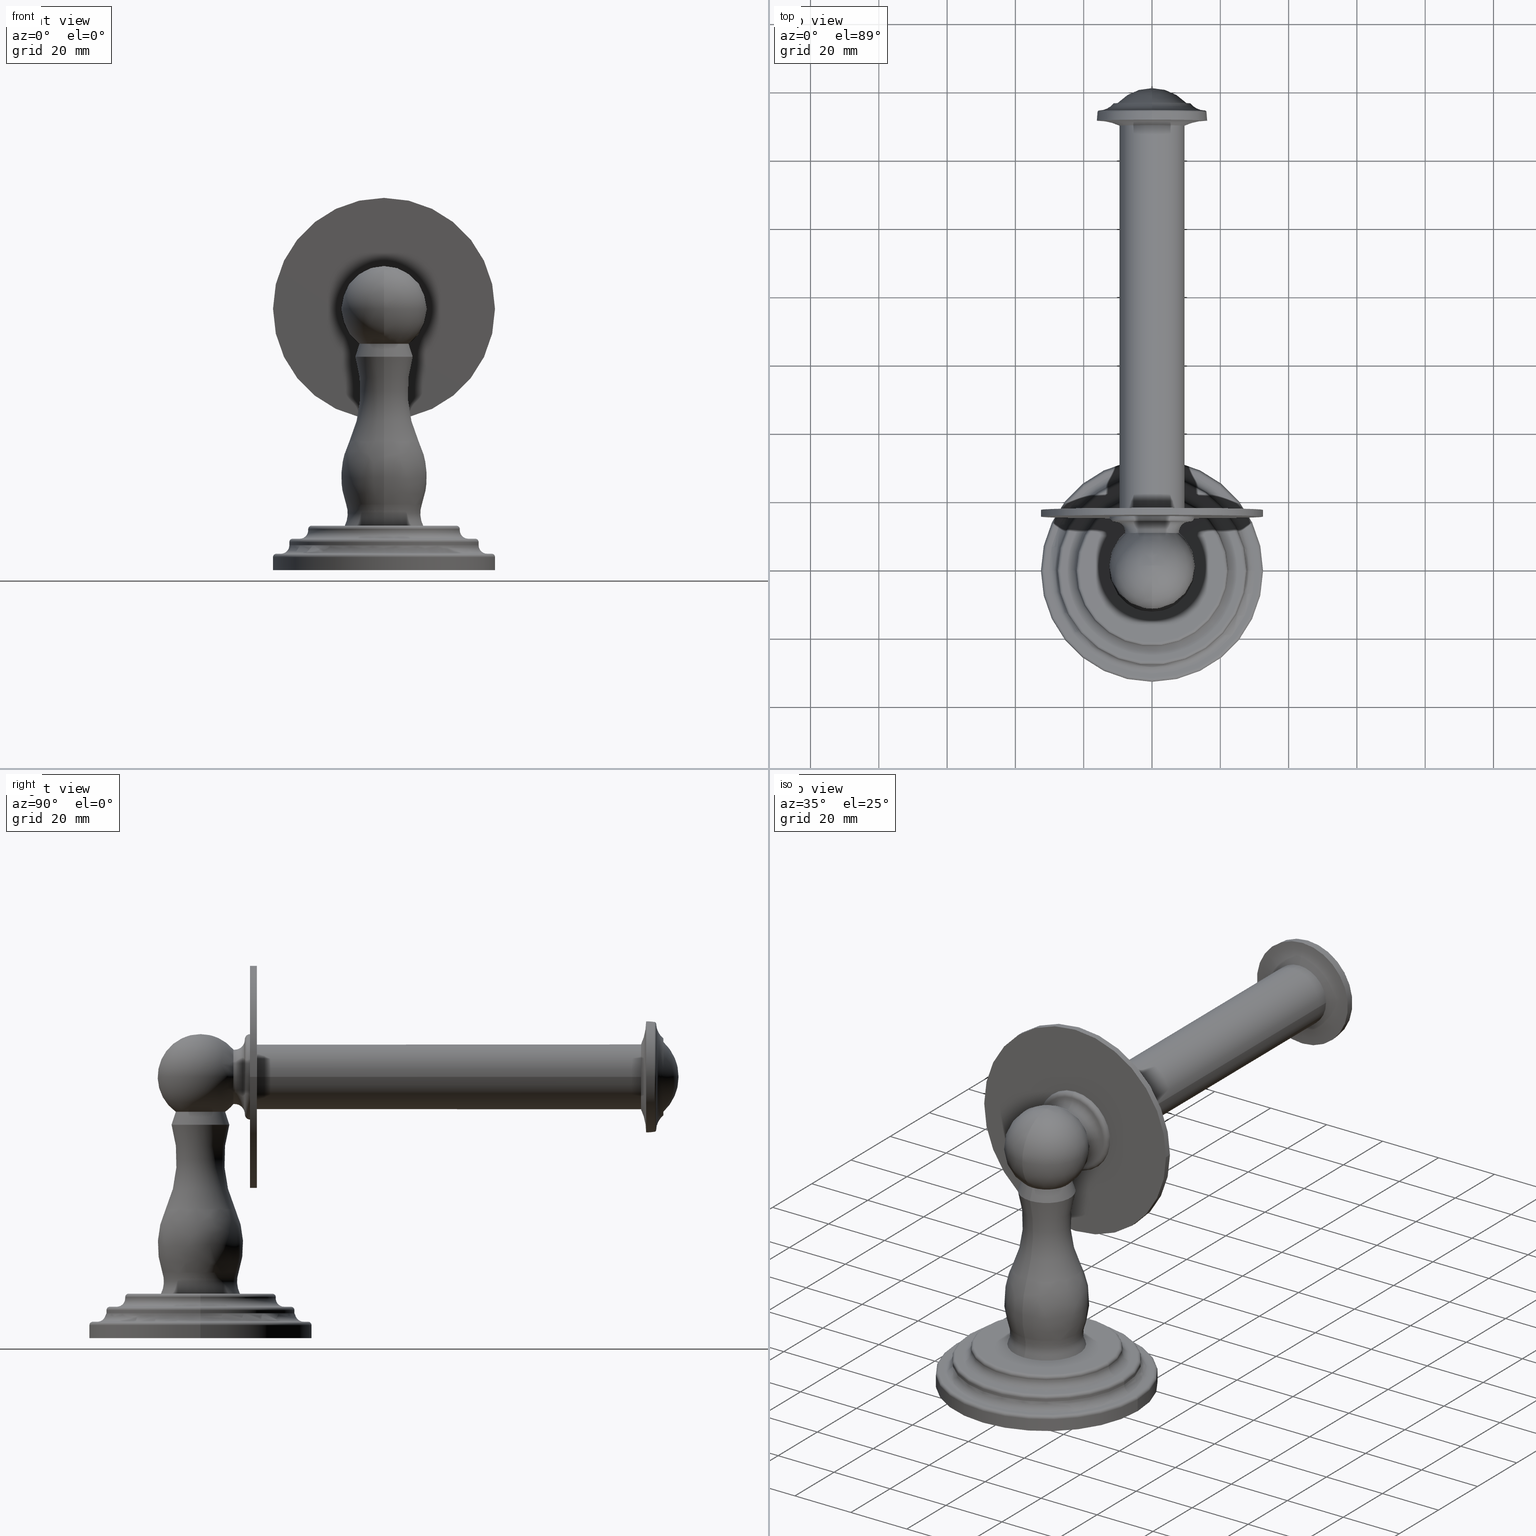
[diagram: canonical four-view strip — front | top / right | iso, engineering-drawing reading convention]
A machine part, canonical four-view strip (front | top / right | iso — engineering-drawing reading convention). The complete STEP part file that produces these views, byte-faithful:
ISO-10303-21;
HEADER;
FILE_DESCRIPTION((''),'2;1');
FILE_NAME('1107','2021-08-12T11:36:58',('Jinson'),(''),
'CREO PARAMETRIC BY PTC INC, 2018400','CREO PARAMETRIC BY PTC INC, 2018400','');
FILE_SCHEMA(('CONFIG_CONTROL_DESIGN'));
ENDSEC;
DATA;
#2=CARTESIAN_POINT('',(0.E0,0.E0,0.E0));
#3=DIRECTION('',(0.E0,0.E0,1.E0));
#4=DIRECTION('',(-1.E0,0.E0,0.E0));
#5=AXIS2_PLACEMENT_3D('',#2,#3,#4);
#7=CARTESIAN_POINT('',(0.E0,0.E0,1.5E-1));
#8=DIRECTION('',(0.E0,0.E0,1.E0));
#9=DIRECTION('',(-1.E0,0.E0,0.E0));
#10=AXIS2_PLACEMENT_3D('',#7,#8,#9);
#12=CARTESIAN_POINT('',(0.E0,0.E0,0.E0));
#13=DIRECTION('',(0.E0,0.E0,-1.E0));
#14=DIRECTION('',(-1.E0,0.E0,0.E0));
#15=AXIS2_PLACEMENT_3D('',#12,#13,#14);
#17=DIRECTION('',(0.E0,-1.487692299598E-13,1.E0));
#18=VECTOR('',#17,1.5E-1);
#19=CARTESIAN_POINT('',(1.28E0,0.E0,0.E0));
#20=LINE('',#19,#18);
#21=CARTESIAN_POINT('',(0.E0,0.E0,1.5E-1));
#22=DIRECTION('',(0.E0,0.E0,1.E0));
#23=DIRECTION('',(1.E0,0.E0,0.E0));
#24=AXIS2_PLACEMENT_3D('',#21,#22,#23);
#26=DIRECTION('',(0.E0,1.474211377972E-13,1.E0));
#27=VECTOR('',#26,1.5E-1);
#28=CARTESIAN_POINT('',(-1.28E0,0.E0,0.E0));
#29=LINE('',#28,#27);
#30=CARTESIAN_POINT('',(1.241E0,0.E0,1.5E-1));
#31=DIRECTION('',(0.E0,1.E0,0.E0));
#32=DIRECTION('',(0.E0,0.E0,1.E0));
#33=AXIS2_PLACEMENT_3D('',#30,#31,#32);
#35=CARTESIAN_POINT('',(0.E0,0.E0,1.89E-1));
#36=DIRECTION('',(0.E0,0.E0,1.E0));
#37=DIRECTION('',(-1.E0,0.E0,0.E0));
#38=AXIS2_PLACEMENT_3D('',#35,#36,#37);
#40=CARTESIAN_POINT('',(0.E0,0.E0,1.89E-1));
#41=DIRECTION('',(0.E0,0.E0,1.E0));
#42=DIRECTION('',(1.E0,0.E0,0.E0));
#43=AXIS2_PLACEMENT_3D('',#40,#41,#42);
#45=CARTESIAN_POINT('',(-1.241E0,0.E0,1.5E-1));
#46=DIRECTION('',(0.E0,-1.E0,0.E0));
#47=DIRECTION('',(1.138690281667E-14,0.E0,1.E0));
#48=AXIS2_PLACEMENT_3D('',#45,#46,#47);
#50=CARTESIAN_POINT('',(-1.189E0,0.E0,2.87E-1));
#51=DIRECTION('',(0.E0,-1.E0,0.E0));
#52=DIRECTION('',(0.E0,0.E0,-1.E0));
#53=AXIS2_PLACEMENT_3D('',#50,#51,#52);
#55=CARTESIAN_POINT('',(0.E0,0.E0,1.89E-1));
#56=DIRECTION('',(0.E0,0.E0,-1.E0));
#57=DIRECTION('',(-1.E0,0.E0,0.E0));
#58=AXIS2_PLACEMENT_3D('',#55,#56,#57);
#60=CARTESIAN_POINT('',(1.189E0,0.E0,2.87E-1));
#61=DIRECTION('',(0.E0,1.E0,0.E0));
#62=DIRECTION('',(0.E0,0.E0,-1.E0));
#63=AXIS2_PLACEMENT_3D('',#60,#61,#62);
#65=CARTESIAN_POINT('',(0.E0,0.E0,1.89E-1));
#66=DIRECTION('',(0.E0,0.E0,1.E0));
#67=DIRECTION('',(-1.E0,0.E0,0.E0));
#68=AXIS2_PLACEMENT_3D('',#65,#66,#67);
#70=CARTESIAN_POINT('',(0.E0,0.E0,3.23E-1));
#71=DIRECTION('',(0.E0,0.E0,1.E0));
#72=DIRECTION('',(-1.E0,0.E0,0.E0));
#73=AXIS2_PLACEMENT_3D('',#70,#71,#72);
#75=CARTESIAN_POINT('',(0.E0,0.E0,2.87E-1));
#76=DIRECTION('',(0.E0,0.E0,1.E0));
#77=DIRECTION('',(-1.E0,0.E0,0.E0));
#78=AXIS2_PLACEMENT_3D('',#75,#76,#77);
#80=CARTESIAN_POINT('',(-1.052E0,0.E0,3.23E-1));
#81=DIRECTION('',(0.E0,-1.E0,0.E0));
#82=DIRECTION('',(0.E0,0.E0,1.E0));
#83=AXIS2_PLACEMENT_3D('',#80,#81,#82);
#85=CARTESIAN_POINT('',(0.E0,0.E0,3.62E-1));
#86=DIRECTION('',(0.E0,0.E0,1.E0));
#87=DIRECTION('',(-1.E0,0.E0,0.E0));
#88=AXIS2_PLACEMENT_3D('',#85,#86,#87);
#90=CARTESIAN_POINT('',(0.E0,0.E0,3.62E-1));
#91=DIRECTION('',(0.E0,0.E0,1.E0));
#92=DIRECTION('',(1.E0,0.E0,0.E0));
#93=AXIS2_PLACEMENT_3D('',#90,#91,#92);
#95=CARTESIAN_POINT('',(1.052E0,0.E0,3.23E-1));
#96=DIRECTION('',(0.E0,1.E0,0.E0));
#97=DIRECTION('',(0.E0,0.E0,1.E0));
#98=AXIS2_PLACEMENT_3D('',#95,#96,#97);
#100=CARTESIAN_POINT('',(0.E0,0.E0,3.23E-1));
#101=DIRECTION('',(0.E0,0.E0,1.E0));
#102=DIRECTION('',(1.E0,0.E0,0.E0));
#103=AXIS2_PLACEMENT_3D('',#100,#101,#102);
#105=DIRECTION('',(0.E0,1.690337443704E-12,1.E0));
#106=VECTOR('',#105,3.6E-2);
#107=CARTESIAN_POINT('',(-1.091E0,0.E0,2.87E-1));
#108=LINE('',#107,#106);
#109=CARTESIAN_POINT('',(0.E0,0.E0,2.87E-1));
#110=DIRECTION('',(0.E0,0.E0,-1.E0));
#111=DIRECTION('',(-1.E0,0.E0,0.E0));
#112=AXIS2_PLACEMENT_3D('',#109,#110,#111);
#114=DIRECTION('',(0.E0,-1.689776164286E-12,1.E0));
#115=VECTOR('',#114,3.6E-2);
#116=CARTESIAN_POINT('',(1.091E0,0.E0,2.87E-1));
#117=LINE('',#116,#115);
#118=CARTESIAN_POINT('',(-9.72E-1,0.E0,4.6E-1));
#119=DIRECTION('',(0.E0,-1.E0,0.E0));
#120=DIRECTION('',(0.E0,0.E0,-1.E0));
#121=AXIS2_PLACEMENT_3D('',#118,#119,#120);
#123=CARTESIAN_POINT('',(0.E0,0.E0,3.62E-1));
#124=DIRECTION('',(0.E0,0.E0,-1.E0));
#125=DIRECTION('',(-1.E0,0.E0,0.E0));
#126=AXIS2_PLACEMENT_3D('',#123,#124,#125);
#128=CARTESIAN_POINT('',(9.72E-1,0.E0,4.6E-1));
#129=DIRECTION('',(0.E0,1.E0,0.E0));
#130=DIRECTION('',(0.E0,0.E0,-1.E0));
#131=AXIS2_PLACEMENT_3D('',#128,#129,#130);
#133=CARTESIAN_POINT('',(0.E0,0.E0,3.62E-1));
#134=DIRECTION('',(0.E0,0.E0,1.E0));
#135=DIRECTION('',(-1.E0,0.E0,0.E0));
#136=AXIS2_PLACEMENT_3D('',#133,#134,#135);
#138=CARTESIAN_POINT('',(0.E0,0.E0,4.73E-1));
#139=DIRECTION('',(0.E0,0.E0,1.E0));
#140=DIRECTION('',(-1.E0,0.E0,0.E0));
#141=AXIS2_PLACEMENT_3D('',#138,#139,#140);
#143=CARTESIAN_POINT('',(0.E0,0.E0,4.6E-1));
#144=DIRECTION('',(0.E0,0.E0,1.E0));
#145=DIRECTION('',(-1.E0,0.E0,0.E0));
#146=AXIS2_PLACEMENT_3D('',#143,#144,#145);
#148=CARTESIAN_POINT('',(0.E0,0.E0,5.12E-1));
#149=DIRECTION('',(0.E0,0.E0,1.E0));
#150=DIRECTION('',(-1.E0,0.E0,0.E0));
#151=AXIS2_PLACEMENT_3D('',#148,#149,#150);
#153=CARTESIAN_POINT('',(-8.35E-1,0.E0,4.73E-1));
#154=DIRECTION('',(0.E0,-1.E0,0.E0));
#155=DIRECTION('',(0.E0,0.E0,1.E0));
#156=AXIS2_PLACEMENT_3D('',#153,#154,#155);
#158=CARTESIAN_POINT('',(0.E0,0.E0,5.12E-1));
#159=DIRECTION('',(0.E0,0.E0,1.E0));
#160=DIRECTION('',(0.E0,-1.E0,0.E0));
#161=AXIS2_PLACEMENT_3D('',#158,#159,#160);
#163=CARTESIAN_POINT('',(0.E0,0.E0,5.12E-1));
#164=DIRECTION('',(0.E0,0.E0,1.E0));
#165=DIRECTION('',(0.E0,1.E0,0.E0));
#166=AXIS2_PLACEMENT_3D('',#163,#164,#165);
#168=CARTESIAN_POINT('',(0.E0,0.E0,5.12E-1));
#169=DIRECTION('',(0.E0,0.E0,1.E0));
#170=DIRECTION('',(1.E0,0.E0,0.E0));
#171=AXIS2_PLACEMENT_3D('',#168,#169,#170);
#173=CARTESIAN_POINT('',(8.35E-1,0.E0,4.73E-1));
#174=DIRECTION('',(0.E0,1.E0,0.E0));
#175=DIRECTION('',(0.E0,0.E0,1.E0));
#176=AXIS2_PLACEMENT_3D('',#173,#174,#175);
#178=CARTESIAN_POINT('',(0.E0,0.E0,4.73E-1));
#179=DIRECTION('',(0.E0,0.E0,1.E0));
#180=DIRECTION('',(1.E0,0.E0,0.E0));
#181=AXIS2_PLACEMENT_3D('',#178,#179,#180);
#183=DIRECTION('',(-1.708035422500E-14,6.213712770815E-12,1.E0));
#184=VECTOR('',#183,1.3E-2);
#185=CARTESIAN_POINT('',(-8.74E-1,0.E0,4.6E-1));
#186=LINE('',#185,#184);
#187=CARTESIAN_POINT('',(0.E0,0.E0,4.6E-1));
#188=DIRECTION('',(0.E0,0.E0,-1.E0));
#189=DIRECTION('',(-1.E0,0.E0,0.E0));
#190=AXIS2_PLACEMENT_3D('',#187,#188,#189);
#192=DIRECTION('',(1.708035422500E-14,-6.233570550766E-12,1.E0));
#193=VECTOR('',#192,1.3E-2);
#194=CARTESIAN_POINT('',(8.74E-1,0.E0,4.6E-1));
#195=LINE('',#194,#193);
#196=CARTESIAN_POINT('',(0.E0,-7.397680894388E-1,6.535313931160E-1));
#197=DIRECTION('',(1.E0,0.E0,0.E0));
#198=DIRECTION('',(0.E0,8.954971366001E-1,-4.450672739498E-1));
#199=AXIS2_PLACEMENT_3D('',#196,#197,#198);
#201=CARTESIAN_POINT('',(0.E0,7.397680894388E-1,6.535313931160E-1));
#202=DIRECTION('',(-1.E0,0.E0,0.E0));
#203=DIRECTION('',(0.E0,-8.954971366001E-1,-4.450672739498E-1));
#204=AXIS2_PLACEMENT_3D('',#201,#202,#203);
#206=CARTESIAN_POINT('',(0.E0,0.E0,7.562048526346E-1));
#207=DIRECTION('',(0.E0,0.E0,-1.E0));
#208=DIRECTION('',(0.E0,-1.E0,0.E0));
#209=AXIS2_PLACEMENT_3D('',#206,#207,#208);
#211=CARTESIAN_POINT('',(0.E0,-4.925E-1,1.073911406617E0));
#212=DIRECTION('',(1.E0,0.E0,0.E0));
#213=DIRECTION('',(0.E0,9.464424650068E-1,-3.228725142094E-1));
#214=AXIS2_PLACEMENT_3D('',#211,#212,#213);
#216=CARTESIAN_POINT('',(0.E0,0.E0,7.562048526346E-1));
#217=DIRECTION('',(0.E0,0.E0,-1.E0));
#218=DIRECTION('',(0.E0,1.E0,0.E0));
#219=AXIS2_PLACEMENT_3D('',#216,#217,#218);
#221=CARTESIAN_POINT('',(0.E0,4.925E-1,1.073911406617E0));
#222=DIRECTION('',(-1.E0,0.E0,0.E0));
#223=DIRECTION('',(0.E0,-9.464424650068E-1,-3.228725142094E-1));
#224=AXIS2_PLACEMENT_3D('',#221,#222,#223);
#226=CARTESIAN_POINT('',(0.E0,0.E0,1.485903471186E0));
#227=DIRECTION('',(0.E0,0.E0,1.E0));
#228=DIRECTION('',(0.E0,-1.E0,0.E0));
#229=AXIS2_PLACEMENT_3D('',#226,#227,#228);
#231=CARTESIAN_POINT('',(0.E0,-1.6525E0,2.062859838033E0));
#232=DIRECTION('',(1.E0,0.E0,0.E0));
#233=DIRECTION('',(0.E0,9.081287044877E-1,-4.186911225300E-1));
#234=AXIS2_PLACEMENT_3D('',#231,#232,#233);
#236=CARTESIAN_POINT('',(0.E0,0.E0,1.485903471186E0));
#237=DIRECTION('',(0.E0,0.E0,-1.E0));
#238=DIRECTION('',(0.E0,-1.E0,0.E0));
#239=AXIS2_PLACEMENT_3D('',#236,#237,#238);
#241=CARTESIAN_POINT('',(0.E0,1.6525E0,2.062859838033E0));
#242=DIRECTION('',(-1.E0,0.E0,0.E0));
#243=DIRECTION('',(0.E0,-9.081287044877E-1,-4.186911225300E-1));
#244=AXIS2_PLACEMENT_3D('',#241,#242,#243);
#246=DIRECTION('',(0.E0,3.090169943749E-1,9.510565162952E-1));
#247=VECTOR('',#246,1.569492969087E-1);
#248=CARTESIAN_POINT('',(0.E0,-3.33E-1,2.460105039388E0));
#249=LINE('',#248,#247);
#250=CARTESIAN_POINT('',(0.E0,0.E0,2.460105039388E0));
#251=DIRECTION('',(0.E0,0.E0,-1.E0));
#252=DIRECTION('',(0.E0,-1.E0,0.E0));
#253=AXIS2_PLACEMENT_3D('',#250,#251,#252);
#255=DIRECTION('',(0.E0,-3.090169943749E-1,9.510565162952E-1));
#256=VECTOR('',#255,1.569492969087E-1);
#257=CARTESIAN_POINT('',(0.E0,3.33E-1,2.460105039388E0));
#258=LINE('',#257,#256);
#259=CARTESIAN_POINT('',(0.E0,0.E0,2.460105039388E0));
#260=DIRECTION('',(0.E0,0.E0,1.E0));
#261=DIRECTION('',(0.E0,-1.E0,0.E0));
#262=AXIS2_PLACEMENT_3D('',#259,#260,#261);
#264=CARTESIAN_POINT('',(0.E0,3.792413479567E-1,3.012E0));
#265=DIRECTION('',(0.E0,-1.E0,0.E0));
#266=DIRECTION('',(0.E0,0.E0,-1.E0));
#267=AXIS2_PLACEMENT_3D('',#264,#265,#266);
#269=CARTESIAN_POINT('',(0.E0,0.E0,2.609372690941E0));
#270=DIRECTION('',(0.E0,0.E0,1.E0));
#271=DIRECTION('',(0.E0,-1.E0,0.E0));
#272=AXIS2_PLACEMENT_3D('',#269,#270,#271);
#274=CARTESIAN_POINT('',(0.E0,3.65E-1,3.012E0));
#275=DIRECTION('',(0.E0,1.E0,0.E0));
#276=DIRECTION('',(0.E0,0.E0,1.E0));
#277=AXIS2_PLACEMENT_3D('',#274,#275,#276);
#279=DIRECTION('',(0.E0,-1.E0,-1.247323529208E-13));
#280=VECTOR('',#279,1.424134795668E-2);
#281=CARTESIAN_POINT('',(0.E0,3.792413479567E-1,3.327E0));
#282=LINE('',#281,#280);
#283=CARTESIAN_POINT('',(0.E0,3.65E-1,3.012E0));
#284=DIRECTION('',(0.E0,-1.E0,0.E0));
#285=DIRECTION('',(0.E0,0.E0,-1.E0));
#286=AXIS2_PLACEMENT_3D('',#283,#284,#285);
#288=CARTESIAN_POINT('',(0.E0,3.65E-1,3.012E0));
#289=DIRECTION('',(0.E0,-1.E0,0.E0));
#290=DIRECTION('',(0.E0,0.E0,1.E0));
#291=AXIS2_PLACEMENT_3D('',#288,#289,#290);
#293=CARTESIAN_POINT('',(0.E0,3.65E-1,3.012E0));
#294=DIRECTION('',(0.E0,1.E0,0.E0));
#295=DIRECTION('',(0.E0,0.E0,-1.E0));
#296=AXIS2_PLACEMENT_3D('',#293,#294,#295);
#298=DIRECTION('',(0.E0,-1.E0,0.E0));
#299=VECTOR('',#298,1.424134795668E-2);
#300=CARTESIAN_POINT('',(0.E0,3.792413479567E-1,2.697E0));
#301=LINE('',#300,#299);
#302=CARTESIAN_POINT('',(0.E0,3.792413479567E-1,3.012E0));
#303=DIRECTION('',(0.E0,-1.E0,0.E0));
#304=DIRECTION('',(0.E0,0.E0,1.E0));
#305=AXIS2_PLACEMENT_3D('',#302,#303,#304);
#307=CARTESIAN_POINT('',(0.E0,0.E0,3.012E0));
#308=DIRECTION('',(1.E0,0.E0,0.E0));
#309=DIRECTION('',(0.E0,7.692522270927E-1,6.389452332657E-1));
#310=AXIS2_PLACEMENT_3D('',#307,#308,#309);
#312=CARTESIAN_POINT('',(0.E0,0.E0,3.012E0));
#313=DIRECTION('',(-1.E0,0.E0,0.E0));
#314=DIRECTION('',(0.E0,-5.770791075051E-1,-8.166882536691E-1));
#315=AXIS2_PLACEMENT_3D('',#312,#313,#314);
#317=CARTESIAN_POINT('',(0.E0,0.E0,2.609372690941E0));
#318=DIRECTION('',(0.E0,0.E0,-1.E0));
#319=DIRECTION('',(0.E0,-1.E0,0.E0));
#320=AXIS2_PLACEMENT_3D('',#317,#318,#319);
#322=CARTESIAN_POINT('',(0.E0,0.E0,3.012E0));
#323=DIRECTION('',(1.E0,0.E0,0.E0));
#324=DIRECTION('',(0.E0,5.770791075051E-1,-8.166882536691E-1));
#325=AXIS2_PLACEMENT_3D('',#322,#323,#324);
#327=DIRECTION('',(0.E0,1.E0,0.E0));
#328=VECTOR('',#327,2.9E-2);
#329=CARTESIAN_POINT('',(0.E0,3.65E-1,2.699E0));
#330=LINE('',#329,#328);
#331=DIRECTION('',(0.E0,1.E0,0.E0));
#332=VECTOR('',#331,2.9E-2);
#333=CARTESIAN_POINT('',(0.E0,3.65E-1,3.325E0));
#334=LINE('',#333,#332);
#335=CARTESIAN_POINT('',(0.E0,3.94E-1,2.581E0));
#336=DIRECTION('',(-1.E0,0.E0,0.E0));
#337=DIRECTION('',(0.E0,0.E0,1.E0));
#338=AXIS2_PLACEMENT_3D('',#335,#336,#337);
#340=CARTESIAN_POINT('',(0.E0,3.94E-1,3.443E0));
#341=DIRECTION('',(1.E0,0.E0,0.E0));
#342=DIRECTION('',(0.E0,0.E0,-1.E0));
#343=AXIS2_PLACEMENT_3D('',#340,#341,#342);
#345=CARTESIAN_POINT('',(0.E0,3.94E-1,3.012E0));
#346=DIRECTION('',(0.E0,1.E0,0.E0));
#347=DIRECTION('',(0.E0,0.E0,-1.E0));
#348=AXIS2_PLACEMENT_3D('',#345,#346,#347);
#350=CARTESIAN_POINT('',(0.E0,3.94E-1,3.012E0));
#351=DIRECTION('',(0.E0,-1.E0,0.E0));
#352=DIRECTION('',(0.E0,0.E0,-1.E0));
#353=AXIS2_PLACEMENT_3D('',#350,#351,#352);
#355=CARTESIAN_POINT('',(0.E0,5.71E-1,3.012E0));
#356=DIRECTION('',(0.E0,-1.E0,0.E0));
#357=DIRECTION('',(0.E0,0.E0,-1.E0));
#358=AXIS2_PLACEMENT_3D('',#355,#356,#357);
#360=CARTESIAN_POINT('',(0.E0,5.119924667947E-1,3.012E0));
#361=DIRECTION('',(0.E0,-1.E0,0.E0));
#362=DIRECTION('',(0.E0,0.E0,-1.E0));
#363=AXIS2_PLACEMENT_3D('',#360,#361,#362);
#365=CARTESIAN_POINT('',(0.E0,5.71E-1,3.012E0));
#366=DIRECTION('',(0.E0,1.E0,0.E0));
#367=DIRECTION('',(1.E0,0.E0,0.E0));
#368=AXIS2_PLACEMENT_3D('',#365,#366,#367);
#370=CARTESIAN_POINT('',(0.E0,5.71E-1,3.012E0));
#371=DIRECTION('',(0.E0,1.E0,0.E0));
#372=DIRECTION('',(-1.E0,0.E0,0.E0));
#373=AXIS2_PLACEMENT_3D('',#370,#371,#372);
#375=DIRECTION('',(0.E0,1.E0,0.E0));
#376=VECTOR('',#375,7.9E-2);
#377=CARTESIAN_POINT('',(1.2795E0,5.71E-1,3.012E0));
#378=LINE('',#377,#376);
#379=DIRECTION('',(0.E0,1.E0,0.E0));
#380=VECTOR('',#379,7.9E-2);
#381=CARTESIAN_POINT('',(-1.2795E0,5.71E-1,3.012E0));
#382=LINE('',#381,#380);
#383=CARTESIAN_POINT('',(0.E0,6.5E-1,3.012E0));
#384=DIRECTION('',(0.E0,1.E0,0.E0));
#385=DIRECTION('',(1.E0,0.E0,0.E0));
#386=AXIS2_PLACEMENT_3D('',#383,#384,#385);
#388=CARTESIAN_POINT('',(0.E0,6.5E-1,3.012E0));
#389=DIRECTION('',(0.E0,1.E0,0.E0));
#390=DIRECTION('',(-1.E0,0.E0,0.E0));
#391=AXIS2_PLACEMENT_3D('',#388,#389,#390);
#393=CARTESIAN_POINT('',(0.E0,6.5E-1,3.012E0));
#394=DIRECTION('',(0.E0,1.E0,0.E0));
#395=DIRECTION('',(1.E0,0.E0,0.E0));
#396=AXIS2_PLACEMENT_3D('',#393,#394,#395);
#398=CARTESIAN_POINT('',(0.E0,6.5E-1,3.012E0));
#399=DIRECTION('',(0.E0,1.E0,0.E0));
#400=DIRECTION('',(-1.E0,0.E0,0.E0));
#401=AXIS2_PLACEMENT_3D('',#398,#399,#400);
#403=CARTESIAN_POINT('',(0.E0,5.079E0,3.012E0));
#404=DIRECTION('',(0.E0,-1.E0,0.E0));
#405=DIRECTION('',(0.E0,0.E0,-1.E0));
#406=AXIS2_PLACEMENT_3D('',#403,#404,#405);
#408=CARTESIAN_POINT('',(0.E0,5.079E0,3.012E0));
#409=DIRECTION('',(0.E0,-1.E0,0.E0));
#410=DIRECTION('',(-1.E0,0.E0,0.E0));
#411=AXIS2_PLACEMENT_3D('',#408,#409,#410);
#413=DIRECTION('',(0.E0,1.E0,0.E0));
#414=VECTOR('',#413,4.429E0);
#415=CARTESIAN_POINT('',(3.74E-1,6.5E-1,3.012E0));
#416=LINE('',#415,#414);
#417=CARTESIAN_POINT('',(0.E0,5.079E0,3.012E0));
#418=DIRECTION('',(0.E0,-1.E0,0.E0));
#419=DIRECTION('',(1.E0,0.E0,0.E0));
#420=AXIS2_PLACEMENT_3D('',#417,#418,#419);
#422=DIRECTION('',(0.E0,1.E0,0.E0));
#423=VECTOR('',#422,4.429E0);
#424=CARTESIAN_POINT('',(-3.74E-1,6.5E-1,3.012E0));
#425=LINE('',#424,#423);
#426=CARTESIAN_POINT('',(0.E0,5.079E0,3.012E0));
#427=DIRECTION('',(0.E0,-1.E0,0.E0));
#428=DIRECTION('',(0.E0,0.E0,1.E0));
#429=AXIS2_PLACEMENT_3D('',#426,#427,#428);
#431=CARTESIAN_POINT('',(0.E0,4.508E0,2.371806461386E0));
#432=DIRECTION('',(-1.E0,0.E0,0.E0));
#433=DIRECTION('',(0.E0,9.063492063492E-1,4.225294263719E-1));
#434=AXIS2_PLACEMENT_3D('',#431,#432,#433);
#436=CARTESIAN_POINT('',(0.E0,4.508E0,3.652193538614E0));
#437=DIRECTION('',(1.E0,0.E0,0.E0));
#438=DIRECTION('',(0.E0,9.063492063492E-1,-4.225294263719E-1));
#439=AXIS2_PLACEMENT_3D('',#436,#437,#438);
#441=CARTESIAN_POINT('',(0.E0,5.236142927692E0,3.012E0));
#442=DIRECTION('',(0.E0,1.E0,0.E0));
#443=DIRECTION('',(0.E0,0.E0,-1.E0));
#444=AXIS2_PLACEMENT_3D('',#441,#442,#443);
#446=CARTESIAN_POINT('',(0.E0,5.138E0,3.012E0));
#447=DIRECTION('',(-1.E0,0.E0,0.E0));
#448=DIRECTION('',(0.E0,0.E0,1.E0));
#449=AXIS2_PLACEMENT_3D('',#446,#447,#448);
#451=CARTESIAN_POINT('',(0.E0,5.138E0,3.012E0));
#452=DIRECTION('',(0.E0,1.E0,0.E0));
#453=DIRECTION('',(0.E0,0.E0,-1.E0));
#454=AXIS2_PLACEMENT_3D('',#451,#452,#453);
#456=CARTESIAN_POINT('',(0.E0,5.138E0,3.012E0));
#457=DIRECTION('',(1.E0,0.E0,0.E0));
#458=DIRECTION('',(0.E0,0.E0,-1.E0));
#459=AXIS2_PLACEMENT_3D('',#456,#457,#458);
#461=CARTESIAN_POINT('',(6.773340568977E-13,5.233076888333E0,2.399137537905E0));
#462=DIRECTION('',(-1.E0,0.E0,-1.105196663354E-12));
#463=DIRECTION('',(2.768646175232E-14,9.996861700679E-1,-2.505117512028E-2));
#464=AXIS2_PLACEMENT_3D('',#461,#462,#463);
#466=CARTESIAN_POINT('',(0.E0,5.253070611735E0,3.012E0));
#467=DIRECTION('',(0.E0,1.E0,0.E0));
#468=DIRECTION('',(0.E0,0.E0,-1.E0));
#469=AXIS2_PLACEMENT_3D('',#466,#467,#468);
#471=CARTESIAN_POINT('',(0.E0,5.478E0,2.393E0));
#472=DIRECTION('',(-1.E0,0.E0,0.E0));
#473=DIRECTION('',(0.E0,-9.996861700679E-1,2.505117512051E-2));
#474=AXIS2_PLACEMENT_3D('',#471,#472,#473);
#476=CARTESIAN_POINT('',(0.E0,5.478E0,3.631E0));
#477=DIRECTION('',(1.E0,0.E0,0.E0));
#478=DIRECTION('',(0.E0,-9.996861700679E-1,-2.505117512051E-2));
#479=AXIS2_PLACEMENT_3D('',#476,#477,#478);
#481=CARTESIAN_POINT('',(0.E0,5.253070611735E0,3.012E0));
#482=DIRECTION('',(0.E0,1.E0,0.E0));
#483=DIRECTION('',(0.E0,0.E0,1.E0));
#484=AXIS2_PLACEMENT_3D('',#481,#482,#483);
#486=CARTESIAN_POINT('',(-6.772885204065E-13,5.233076888333E0,
3.624862462095E0));
#487=DIRECTION('',(1.E0,0.E0,1.105122937606E-12));
#488=DIRECTION('',(-2.768464164311E-14,9.996861700679E-1,2.505117512028E-2));
#489=AXIS2_PLACEMENT_3D('',#486,#487,#488);
#491=CARTESIAN_POINT('',(0.E0,5.236142927692E0,3.012E0));
#492=DIRECTION('',(0.E0,1.E0,0.E0));
#493=DIRECTION('',(0.E0,0.E0,1.E0));
#494=AXIS2_PLACEMENT_3D('',#491,#492,#493);
#496=CARTESIAN_POINT('',(0.E0,5.138E0,3.012E0));
#497=DIRECTION('',(0.E0,-1.E0,0.E0));
#498=DIRECTION('',(0.E0,0.E0,-1.E0));
#499=AXIS2_PLACEMENT_3D('',#496,#497,#498);
#501=CARTESIAN_POINT('',(0.E0,5.336218269811E0,3.012E0));
#502=DIRECTION('',(0.E0,1.E0,0.E0));
#503=DIRECTION('',(0.E0,0.E0,-1.E0));
#504=AXIS2_PLACEMENT_3D('',#501,#502,#503);
#506=CARTESIAN_POINT('',(0.E0,5.336218269811E0,3.012E0));
#507=DIRECTION('',(0.E0,-1.E0,0.E0));
#508=DIRECTION('',(0.E0,0.E0,-1.E0));
#509=AXIS2_PLACEMENT_3D('',#506,#507,#508);
#511=CARTESIAN_POINT('',(0.E0,5.336218269811E0,3.012E0));
#512=DIRECTION('',(0.E0,-1.E0,0.E0));
#513=DIRECTION('',(0.E0,0.E0,-1.E0));
#514=AXIS2_PLACEMENT_3D('',#511,#512,#513);
#516=CARTESIAN_POINT('',(0.E0,4.961E0,3.012E0));
#517=DIRECTION('',(1.E0,0.E0,0.E0));
#518=DIRECTION('',(0.E0,6.809768962088E-1,-7.323049001815E-1));
#519=AXIS2_PLACEMENT_3D('',#516,#517,#518);
#521=CARTESIAN_POINT('',(0.E0,4.961E0,3.012E0));
#522=DIRECTION('',(-1.E0,0.E0,0.E0));
#523=DIRECTION('',(0.E0,6.809768962088E-1,7.323049001815E-1));
#524=AXIS2_PLACEMENT_3D('',#521,#522,#523);
#526=CARTESIAN_POINT('',(0.E0,5.336218269811E0,3.012E0));
#527=DIRECTION('',(0.E0,1.E0,0.E0));
#528=DIRECTION('',(0.E0,0.E0,-1.E0));
#529=AXIS2_PLACEMENT_3D('',#526,#527,#528);
#531=CARTESIAN_POINT('',(0.E0,5.71E-1,3.012E0));
#532=DIRECTION('',(0.E0,-1.E0,0.E0));
#533=DIRECTION('',(0.E0,0.E0,1.E0));
#534=AXIS2_PLACEMENT_3D('',#531,#532,#533);
#536=CARTESIAN_POINT('',(0.E0,5.709887001921E-1,3.445000001082E0));
#537=DIRECTION('',(-1.E0,0.E0,0.E0));
#538=DIRECTION('',(0.E0,-9.999361592771E-1,-1.129944114171E-2));
#539=AXIS2_PLACEMENT_3D('',#536,#537,#538);
#541=CARTESIAN_POINT('',(0.E0,5.119924667947E-1,3.012E0));
#542=DIRECTION('',(0.E0,1.E0,0.E0));
#543=DIRECTION('',(0.E0,0.E0,-1.E0));
#544=AXIS2_PLACEMENT_3D('',#541,#542,#543);
#546=CARTESIAN_POINT('',(0.E0,5.709887001921E-1,2.578999998918E0));
#547=DIRECTION('',(1.E0,0.E0,0.E0));
#548=DIRECTION('',(0.E0,-9.999361592771E-1,1.129944114171E-2));
#549=AXIS2_PLACEMENT_3D('',#546,#547,#548);
#551=CARTESIAN_POINT('',(-1.189E0,0.E0,1.89E-1));
#552=CARTESIAN_POINT('',(-1.091E0,0.E0,2.87E-1));
#553=VERTEX_POINT('',#551);
#554=VERTEX_POINT('',#552);
#555=CARTESIAN_POINT('',(-9.72E-1,0.E0,3.62E-1));
#556=CARTESIAN_POINT('',(-8.74E-1,0.E0,4.6E-1));
#557=VERTEX_POINT('',#555);
#558=VERTEX_POINT('',#556);
#559=CARTESIAN_POINT('',(1.189E0,0.E0,1.89E-1));
#560=CARTESIAN_POINT('',(1.091E0,0.E0,2.87E-1));
#561=VERTEX_POINT('',#559);
#562=VERTEX_POINT('',#560);
#563=CARTESIAN_POINT('',(9.72E-1,0.E0,3.62E-1));
#564=CARTESIAN_POINT('',(8.74E-1,0.E0,4.6E-1));
#565=VERTEX_POINT('',#563);
#566=VERTEX_POINT('',#564);
#567=CARTESIAN_POINT('',(-1.241E0,0.E0,1.89E-1));
#568=CARTESIAN_POINT('',(1.241E0,0.E0,1.89E-1));
#569=VERTEX_POINT('',#567);
#570=VERTEX_POINT('',#568);
#571=CARTESIAN_POINT('',(-1.28E0,0.E0,1.5E-1));
#572=CARTESIAN_POINT('',(1.28E0,0.E0,1.5E-1));
#573=VERTEX_POINT('',#571);
#574=VERTEX_POINT('',#572);
#575=CARTESIAN_POINT('',(-1.052E0,0.E0,3.62E-1));
#576=CARTESIAN_POINT('',(1.052E0,0.E0,3.62E-1));
#577=VERTEX_POINT('',#575);
#578=VERTEX_POINT('',#576);
#579=CARTESIAN_POINT('',(-1.091E0,0.E0,3.23E-1));
#580=CARTESIAN_POINT('',(1.091E0,0.E0,3.23E-1));
#581=VERTEX_POINT('',#579);
#582=VERTEX_POINT('',#580);
#583=CARTESIAN_POINT('',(-8.74E-1,0.E0,4.73E-1));
#584=CARTESIAN_POINT('',(8.74E-1,0.E0,4.73E-1));
#585=VERTEX_POINT('',#583);
#586=VERTEX_POINT('',#584);
#587=CARTESIAN_POINT('',(-1.28E0,0.E0,0.E0));
#588=CARTESIAN_POINT('',(1.28E0,0.E0,0.E0));
#589=VERTEX_POINT('',#587);
#590=VERTEX_POINT('',#588);
#591=CARTESIAN_POINT('',(-8.35E-1,0.E0,5.12E-1));
#592=CARTESIAN_POINT('',(8.35E-1,0.E0,5.12E-1));
#593=VERTEX_POINT('',#591);
#594=VERTEX_POINT('',#592);
#595=CARTESIAN_POINT('',(0.E0,-4.010986452159E-1,1.485903471186E0));
#596=CARTESIAN_POINT('',(0.E0,-3.33E-1,2.460105039388E0));
#597=VERTEX_POINT('',#595);
#598=VERTEX_POINT('',#596);
#599=CARTESIAN_POINT('',(0.E0,-2.845E-1,2.609372690941E0));
#600=VERTEX_POINT('',#599);
#601=CARTESIAN_POINT('',(0.E0,0.E0,3.505E0));
#602=VERTEX_POINT('',#601);
#603=CARTESIAN_POINT('',(0.E0,4.387993855667E-1,7.562048526346E-1));
#604=CARTESIAN_POINT('',(0.E0,4.010986452159E-1,1.485903471186E0));
#605=VERTEX_POINT('',#603);
#606=VERTEX_POINT('',#604);
#607=CARTESIAN_POINT('',(0.E0,3.33E-1,2.460105039388E0));
#608=VERTEX_POINT('',#607);
#609=CARTESIAN_POINT('',(0.E0,2.845E-1,2.609372690941E0));
#610=VERTEX_POINT('',#609);
#611=CARTESIAN_POINT('',(0.E0,3.792413479567E-1,2.697E0));
#612=CARTESIAN_POINT('',(0.E0,3.792413479567E-1,3.327E0));
#613=VERTEX_POINT('',#611);
#614=VERTEX_POINT('',#612);
#615=CARTESIAN_POINT('',(0.E0,-4.387993855667E-1,7.562048526346E-1));
#616=VERTEX_POINT('',#615);
#617=CARTESIAN_POINT('',(0.E0,3.65E-1,2.697E0));
#618=CARTESIAN_POINT('',(0.E0,3.65E-1,3.327E0));
#619=VERTEX_POINT('',#617);
#620=VERTEX_POINT('',#618);
#621=CARTESIAN_POINT('',(0.E0,3.94E-1,2.699E0));
#622=CARTESIAN_POINT('',(0.E0,5.119924667947E-1,2.579666665945E0));
#623=VERTEX_POINT('',#621);
#624=VERTEX_POINT('',#622);
#625=CARTESIAN_POINT('',(0.E0,3.94E-1,3.325E0));
#626=CARTESIAN_POINT('',(0.E0,5.119924667947E-1,3.444333334055E0));
#627=VERTEX_POINT('',#625);
#628=VERTEX_POINT('',#626);
#629=CARTESIAN_POINT('',(0.E0,3.65E-1,2.699E0));
#630=CARTESIAN_POINT('',(0.E0,3.65E-1,3.325E0));
#631=VERTEX_POINT('',#629);
#632=VERTEX_POINT('',#630);
#633=CARTESIAN_POINT('',(1.2795E0,5.71E-1,3.012E0));
#634=CARTESIAN_POINT('',(-1.2795E0,5.71E-1,3.012E0));
#635=VERTEX_POINT('',#633);
#636=VERTEX_POINT('',#634);
#637=CARTESIAN_POINT('',(1.2795E0,6.5E-1,3.012E0));
#638=CARTESIAN_POINT('',(-1.2795E0,6.5E-1,3.012E0));
#639=VERTEX_POINT('',#637);
#640=VERTEX_POINT('',#638);
#641=CARTESIAN_POINT('',(0.E0,5.71E-1,2.52E0));
#642=CARTESIAN_POINT('',(0.E0,5.71E-1,3.504E0));
#643=VERTEX_POINT('',#641);
#644=VERTEX_POINT('',#642);
#645=CARTESIAN_POINT('',(3.74E-1,6.5E-1,3.012E0));
#646=CARTESIAN_POINT('',(-3.74E-1,6.5E-1,3.012E0));
#647=VERTEX_POINT('',#645);
#648=VERTEX_POINT('',#646);
#649=CARTESIAN_POINT('',(0.E0,5.336218269811E0,2.6085E0));
#650=CARTESIAN_POINT('',(0.E0,5.512E0,3.012E0));
#651=VERTEX_POINT('',#649);
#652=VERTEX_POINT('',#650);
#653=CARTESIAN_POINT('',(0.E0,5.336218269811E0,3.4155E0));
#654=VERTEX_POINT('',#653);
#655=CARTESIAN_POINT('',(0.E0,5.138E0,2.371806472026E0));
#656=CARTESIAN_POINT('',(0.E0,5.138E0,3.652193527974E0));
#657=VERTEX_POINT('',#655);
#658=VERTEX_POINT('',#656);
#659=CARTESIAN_POINT('',(0.E0,5.336218269811E0,2.567708159468E0));
#660=CARTESIAN_POINT('',(0.E0,5.336218269811E0,3.456291840532E0));
#661=VERTEX_POINT('',#659);
#662=VERTEX_POINT('',#660);
#663=CARTESIAN_POINT('',(0.E0,5.253070611735E0,2.398636514402E0));
#664=CARTESIAN_POINT('',(0.E0,5.253070611735E0,3.625363485598E0));
#665=VERTEX_POINT('',#663);
#666=VERTEX_POINT('',#664);
#667=CARTESIAN_POINT('',(0.E0,5.236142927692E0,2.379373950106E0));
#668=CARTESIAN_POINT('',(0.E0,5.236142927692E0,3.644626049894E0));
#669=VERTEX_POINT('',#667);
#670=VERTEX_POINT('',#668);
#671=CARTESIAN_POINT('',(0.E0,5.079E0,2.638E0));
#672=CARTESIAN_POINT('',(3.74E-1,5.079E0,3.012E0));
#673=VERTEX_POINT('',#671);
#674=VERTEX_POINT('',#672);
#675=CARTESIAN_POINT('',(0.E0,5.079E0,3.386E0));
#676=VERTEX_POINT('',#675);
#677=CARTESIAN_POINT('',(-3.74E-1,5.079E0,3.012E0));
#678=VERTEX_POINT('',#677);
#679=CARTESIAN_POINT('',(0.E0,-4.55E-1,5.12E-1));
#680=CARTESIAN_POINT('',(0.E0,4.55E-1,5.12E-1));
#681=VERTEX_POINT('',#679);
#682=VERTEX_POINT('',#680);
#683=CARTESIAN_POINT('',(0.E0,0.E0,0.E0));
#684=DIRECTION('',(0.E0,0.E0,1.E0));
#685=DIRECTION('',(1.E0,0.E0,0.E0));
#686=AXIS2_PLACEMENT_3D('',#683,#684,#685);
#687=PLANE('',#686);
#689=ORIENTED_EDGE('',*,*,#688,.T.);
#691=ORIENTED_EDGE('',*,*,#690,.F.);
#692=EDGE_LOOP('',(#689,#691));
#693=FACE_OUTER_BOUND('',#692,.F.);
#694=ADVANCED_FACE('',(#693),#687,.F.);
#695=CARTESIAN_POINT('',(0.E0,0.E0,-2.56E-2));
#696=DIRECTION('',(0.E0,0.E0,1.E0));
#697=DIRECTION('',(-1.E0,0.E0,0.E0));
#698=AXIS2_PLACEMENT_3D('',#695,#696,#697);
#699=CYLINDRICAL_SURFACE('',#698,1.28E0);
#700=ORIENTED_EDGE('',*,*,#688,.F.);
#702=ORIENTED_EDGE('',*,*,#701,.T.);
#704=ORIENTED_EDGE('',*,*,#703,.T.);
#706=ORIENTED_EDGE('',*,*,#705,.F.);
#707=EDGE_LOOP('',(#700,#702,#704,#706));
#708=FACE_OUTER_BOUND('',#707,.F.);
#709=ADVANCED_FACE('',(#708),#699,.T.);
#710=CARTESIAN_POINT('',(0.E0,0.E0,-2.56E-2));
#711=DIRECTION('',(0.E0,0.E0,1.E0));
#712=DIRECTION('',(-1.E0,0.E0,0.E0));
#713=AXIS2_PLACEMENT_3D('',#710,#711,#712);
#714=CYLINDRICAL_SURFACE('',#713,1.28E0);
#715=ORIENTED_EDGE('',*,*,#690,.T.);
#716=ORIENTED_EDGE('',*,*,#705,.T.);
#718=ORIENTED_EDGE('',*,*,#717,.T.);
#719=ORIENTED_EDGE('',*,*,#701,.F.);
#720=EDGE_LOOP('',(#715,#716,#718,#719));
#721=FACE_OUTER_BOUND('',#720,.F.);
#722=ADVANCED_FACE('',(#721),#714,.T.);
#723=CARTESIAN_POINT('',(0.E0,0.E0,1.5E-1));
#724=DIRECTION('',(0.E0,0.E0,1.E0));
#725=DIRECTION('',(9.999903501796E-1,-4.393125047364E-3,0.E0));
#726=AXIS2_PLACEMENT_3D('',#723,#724,#725);
#727=TOROIDAL_SURFACE('',#726,1.241E0,3.9E-2);
#729=ORIENTED_EDGE('',*,*,#728,.T.);
#731=ORIENTED_EDGE('',*,*,#730,.T.);
#732=ORIENTED_EDGE('',*,*,#717,.F.);
#734=ORIENTED_EDGE('',*,*,#733,.F.);
#735=EDGE_LOOP('',(#729,#731,#732,#734));
#736=FACE_OUTER_BOUND('',#735,.F.);
#737=ADVANCED_FACE('',(#736),#727,.T.);
#738=CARTESIAN_POINT('',(0.E0,0.E0,1.89E-1));
#739=DIRECTION('',(0.E0,0.E0,1.E0));
#740=DIRECTION('',(-1.E0,0.E0,0.E0));
#741=AXIS2_PLACEMENT_3D('',#738,#739,#740);
#742=PLANE('',#741);
#744=ORIENTED_EDGE('',*,*,#743,.F.);
#745=ORIENTED_EDGE('',*,*,#728,.F.);
#746=EDGE_LOOP('',(#744,#745));
#747=FACE_OUTER_BOUND('',#746,.F.);
#749=ORIENTED_EDGE('',*,*,#748,.F.);
#751=ORIENTED_EDGE('',*,*,#750,.T.);
#752=EDGE_LOOP('',(#749,#751));
#753=FACE_BOUND('',#752,.F.);
#754=ADVANCED_FACE('',(#747,#753),#742,.T.);
#755=CARTESIAN_POINT('',(0.E0,0.E0,1.5E-1));
#756=DIRECTION('',(0.E0,0.E0,1.E0));
#757=DIRECTION('',(-9.999903501796E-1,4.393125047364E-3,0.E0));
#758=AXIS2_PLACEMENT_3D('',#755,#756,#757);
#759=TOROIDAL_SURFACE('',#758,1.241E0,3.9E-2);
#760=ORIENTED_EDGE('',*,*,#743,.T.);
#761=ORIENTED_EDGE('',*,*,#733,.T.);
#762=ORIENTED_EDGE('',*,*,#703,.F.);
#763=ORIENTED_EDGE('',*,*,#730,.F.);
#764=EDGE_LOOP('',(#760,#761,#762,#763));
#765=FACE_OUTER_BOUND('',#764,.F.);
#766=ADVANCED_FACE('',(#765),#759,.T.);
#767=CARTESIAN_POINT('',(0.E0,0.E0,2.87E-1));
#768=DIRECTION('',(0.E0,0.E0,1.E0));
#769=DIRECTION('',(-1.E0,0.E0,0.E0));
#770=AXIS2_PLACEMENT_3D('',#767,#768,#769);
#771=TOROIDAL_SURFACE('',#770,1.189E0,9.8E-2);
#773=ORIENTED_EDGE('',*,*,#772,.F.);
#774=ORIENTED_EDGE('',*,*,#748,.T.);
#776=ORIENTED_EDGE('',*,*,#775,.T.);
#778=ORIENTED_EDGE('',*,*,#777,.F.);
#779=EDGE_LOOP('',(#773,#774,#776,#778));
#780=FACE_OUTER_BOUND('',#779,.F.);
#781=ADVANCED_FACE('',(#780),#771,.F.);
#782=CARTESIAN_POINT('',(0.E0,0.E0,2.87E-1));
#783=DIRECTION('',(0.E0,0.E0,1.E0));
#784=DIRECTION('',(-1.E0,0.E0,0.E0));
#785=AXIS2_PLACEMENT_3D('',#782,#783,#784);
#786=TOROIDAL_SURFACE('',#785,1.189E0,9.8E-2);
#787=ORIENTED_EDGE('',*,*,#772,.T.);
#789=ORIENTED_EDGE('',*,*,#788,.T.);
#790=ORIENTED_EDGE('',*,*,#775,.F.);
#791=ORIENTED_EDGE('',*,*,#750,.F.);
#792=EDGE_LOOP('',(#787,#789,#790,#791));
#793=FACE_OUTER_BOUND('',#792,.F.);
#794=ADVANCED_FACE('',(#793),#786,.F.);
#795=CARTESIAN_POINT('',(0.E0,0.E0,-2.56E-2));
#796=DIRECTION('',(0.E0,0.E0,1.E0));
#797=DIRECTION('',(-1.E0,0.E0,0.E0));
#798=AXIS2_PLACEMENT_3D('',#795,#796,#797);
#799=CYLINDRICAL_SURFACE('',#798,1.091E0);
#801=ORIENTED_EDGE('',*,*,#800,.T.);
#803=ORIENTED_EDGE('',*,*,#802,.F.);
#804=ORIENTED_EDGE('',*,*,#788,.F.);
#806=ORIENTED_EDGE('',*,*,#805,.T.);
#807=EDGE_LOOP('',(#801,#803,#804,#806));
#808=FACE_OUTER_BOUND('',#807,.F.);
#809=ADVANCED_FACE('',(#808),#799,.T.);
#810=CARTESIAN_POINT('',(0.E0,0.E0,3.23E-1));
#811=DIRECTION('',(0.E0,0.E0,1.E0));
#812=DIRECTION('',(-9.999867172070E-1,5.154164299679E-3,0.E0));
#813=AXIS2_PLACEMENT_3D('',#810,#811,#812);
#814=TOROIDAL_SURFACE('',#813,1.052E0,3.9E-2);
#816=ORIENTED_EDGE('',*,*,#815,.T.);
#818=ORIENTED_EDGE('',*,*,#817,.T.);
#819=ORIENTED_EDGE('',*,*,#800,.F.);
#821=ORIENTED_EDGE('',*,*,#820,.F.);
#822=EDGE_LOOP('',(#816,#818,#819,#821));
#823=FACE_OUTER_BOUND('',#822,.F.);
#824=ADVANCED_FACE('',(#823),#814,.T.);
#825=CARTESIAN_POINT('',(0.E0,0.E0,3.62E-1));
#826=DIRECTION('',(0.E0,0.E0,1.E0));
#827=DIRECTION('',(-1.E0,0.E0,0.E0));
#828=AXIS2_PLACEMENT_3D('',#825,#826,#827);
#829=PLANE('',#828);
#830=ORIENTED_EDGE('',*,*,#815,.F.);
#832=ORIENTED_EDGE('',*,*,#831,.F.);
#833=EDGE_LOOP('',(#830,#832));
#834=FACE_OUTER_BOUND('',#833,.F.);
#836=ORIENTED_EDGE('',*,*,#835,.F.);
#838=ORIENTED_EDGE('',*,*,#837,.T.);
#839=EDGE_LOOP('',(#836,#838));
#840=FACE_BOUND('',#839,.F.);
#841=ADVANCED_FACE('',(#834,#840),#829,.T.);
#842=CARTESIAN_POINT('',(0.E0,0.E0,3.23E-1));
#843=DIRECTION('',(0.E0,0.E0,1.E0));
#844=DIRECTION('',(9.999867172070E-1,-5.154164299679E-3,0.E0));
#845=AXIS2_PLACEMENT_3D('',#842,#843,#844);
#846=TOROIDAL_SURFACE('',#845,1.052E0,3.9E-2);
#847=ORIENTED_EDGE('',*,*,#831,.T.);
#848=ORIENTED_EDGE('',*,*,#820,.T.);
#850=ORIENTED_EDGE('',*,*,#849,.F.);
#851=ORIENTED_EDGE('',*,*,#817,.F.);
#852=EDGE_LOOP('',(#847,#848,#850,#851));
#853=FACE_OUTER_BOUND('',#852,.F.);
#854=ADVANCED_FACE('',(#853),#846,.T.);
#855=CARTESIAN_POINT('',(0.E0,0.E0,-2.56E-2));
#856=DIRECTION('',(0.E0,0.E0,1.E0));
#857=DIRECTION('',(-1.E0,0.E0,0.E0));
#858=AXIS2_PLACEMENT_3D('',#855,#856,#857);
#859=CYLINDRICAL_SURFACE('',#858,1.091E0);
#860=ORIENTED_EDGE('',*,*,#849,.T.);
#861=ORIENTED_EDGE('',*,*,#805,.F.);
#862=ORIENTED_EDGE('',*,*,#777,.T.);
#863=ORIENTED_EDGE('',*,*,#802,.T.);
#864=EDGE_LOOP('',(#860,#861,#862,#863));
#865=FACE_OUTER_BOUND('',#864,.F.);
#866=ADVANCED_FACE('',(#865),#859,.T.);
#867=CARTESIAN_POINT('',(0.E0,0.E0,4.6E-1));
#868=DIRECTION('',(0.E0,0.E0,1.E0));
#869=DIRECTION('',(-1.E0,0.E0,0.E0));
#870=AXIS2_PLACEMENT_3D('',#867,#868,#869);
#871=TOROIDAL_SURFACE('',#870,9.72E-1,9.8E-2);
#873=ORIENTED_EDGE('',*,*,#872,.F.);
#874=ORIENTED_EDGE('',*,*,#835,.T.);
#876=ORIENTED_EDGE('',*,*,#875,.T.);
#878=ORIENTED_EDGE('',*,*,#877,.F.);
#879=EDGE_LOOP('',(#873,#874,#876,#878));
#880=FACE_OUTER_BOUND('',#879,.F.);
#881=ADVANCED_FACE('',(#880),#871,.F.);
#882=CARTESIAN_POINT('',(0.E0,0.E0,4.6E-1));
#883=DIRECTION('',(0.E0,0.E0,1.E0));
#884=DIRECTION('',(-1.E0,0.E0,0.E0));
#885=AXIS2_PLACEMENT_3D('',#882,#883,#884);
#886=TOROIDAL_SURFACE('',#885,9.72E-1,9.8E-2);
#887=ORIENTED_EDGE('',*,*,#872,.T.);
#889=ORIENTED_EDGE('',*,*,#888,.T.);
#890=ORIENTED_EDGE('',*,*,#875,.F.);
#891=ORIENTED_EDGE('',*,*,#837,.F.);
#892=EDGE_LOOP('',(#887,#889,#890,#891));
#893=FACE_OUTER_BOUND('',#892,.F.);
#894=ADVANCED_FACE('',(#893),#886,.F.);
#895=CARTESIAN_POINT('',(0.E0,0.E0,-2.56E-2));
#896=DIRECTION('',(0.E0,0.E0,1.E0));
#897=DIRECTION('',(-1.E0,0.E0,0.E0));
#898=AXIS2_PLACEMENT_3D('',#895,#896,#897);
#899=CYLINDRICAL_SURFACE('',#898,8.74E-1);
#901=ORIENTED_EDGE('',*,*,#900,.T.);
#903=ORIENTED_EDGE('',*,*,#902,.F.);
#904=ORIENTED_EDGE('',*,*,#888,.F.);
#906=ORIENTED_EDGE('',*,*,#905,.T.);
#907=EDGE_LOOP('',(#901,#903,#904,#906));
#908=FACE_OUTER_BOUND('',#907,.F.);
#909=ADVANCED_FACE('',(#908),#899,.T.);
#910=CARTESIAN_POINT('',(0.E0,0.E0,4.73E-1));
#911=DIRECTION('',(0.E0,0.E0,1.E0));
#912=DIRECTION('',(-9.999793026137E-1,6.433843653272E-3,0.E0));
#913=AXIS2_PLACEMENT_3D('',#910,#911,#912);
#914=TOROIDAL_SURFACE('',#913,8.35E-1,3.9E-2);
#916=ORIENTED_EDGE('',*,*,#915,.T.);
#918=ORIENTED_EDGE('',*,*,#917,.T.);
#919=ORIENTED_EDGE('',*,*,#900,.F.);
#921=ORIENTED_EDGE('',*,*,#920,.F.);
#922=EDGE_LOOP('',(#916,#918,#919,#921));
#923=FACE_OUTER_BOUND('',#922,.F.);
#924=ADVANCED_FACE('',(#923),#914,.T.);
#925=CARTESIAN_POINT('',(-5.E-1,1.774594738293E-1,5.12E-1));
#926=DIRECTION('',(0.E0,0.E0,-1.E0));
#927=DIRECTION('',(0.E0,1.E0,0.E0));
#928=AXIS2_PLACEMENT_3D('',#925,#926,#927);
#929=PLANE('',#928);
#930=ORIENTED_EDGE('',*,*,#915,.F.);
#932=ORIENTED_EDGE('',*,*,#931,.F.);
#933=EDGE_LOOP('',(#930,#932));
#934=FACE_OUTER_BOUND('',#933,.F.);
#936=ORIENTED_EDGE('',*,*,#935,.T.);
#938=ORIENTED_EDGE('',*,*,#937,.T.);
#939=EDGE_LOOP('',(#936,#938));
#940=FACE_BOUND('',#939,.F.);
#941=ADVANCED_FACE('',(#934,#940),#929,.F.);
#942=CARTESIAN_POINT('',(0.E0,0.E0,4.73E-1));
#943=DIRECTION('',(0.E0,0.E0,1.E0));
#944=DIRECTION('',(9.999793026137E-1,-6.433843653272E-3,0.E0));
#945=AXIS2_PLACEMENT_3D('',#942,#943,#944);
#946=TOROIDAL_SURFACE('',#945,8.35E-1,3.9E-2);
#947=ORIENTED_EDGE('',*,*,#931,.T.);
#948=ORIENTED_EDGE('',*,*,#920,.T.);
#950=ORIENTED_EDGE('',*,*,#949,.F.);
#951=ORIENTED_EDGE('',*,*,#917,.F.);
#952=EDGE_LOOP('',(#947,#948,#950,#951));
#953=FACE_OUTER_BOUND('',#952,.F.);
#954=ADVANCED_FACE('',(#953),#946,.T.);
#955=CARTESIAN_POINT('',(0.E0,0.E0,-2.56E-2));
#956=DIRECTION('',(0.E0,0.E0,1.E0));
#957=DIRECTION('',(-1.E0,0.E0,0.E0));
#958=AXIS2_PLACEMENT_3D('',#955,#956,#957);
#959=CYLINDRICAL_SURFACE('',#958,8.74E-1);
#960=ORIENTED_EDGE('',*,*,#949,.T.);
#961=ORIENTED_EDGE('',*,*,#905,.F.);
#962=ORIENTED_EDGE('',*,*,#877,.T.);
#963=ORIENTED_EDGE('',*,*,#902,.T.);
#964=EDGE_LOOP('',(#960,#961,#962,#963));
#965=FACE_OUTER_BOUND('',#964,.F.);
#966=ADVANCED_FACE('',(#965),#959,.T.);
#967=CARTESIAN_POINT('',(0.E0,0.E0,6.535313931160E-1));
#968=DIRECTION('',(0.E0,0.E0,1.E0));
#969=DIRECTION('',(0.E0,-1.E0,0.E0));
#970=AXIS2_PLACEMENT_3D('',#967,#968,#969);
#971=TOROIDAL_SURFACE('',#970,7.397680894388E-1,3.18E-1);
#972=ORIENTED_EDGE('',*,*,#935,.F.);
#974=ORIENTED_EDGE('',*,*,#973,.T.);
#976=ORIENTED_EDGE('',*,*,#975,.F.);
#978=ORIENTED_EDGE('',*,*,#977,.F.);
#979=EDGE_LOOP('',(#972,#974,#976,#978));
#980=FACE_OUTER_BOUND('',#979,.F.);
#981=ADVANCED_FACE('',(#980),#971,.F.);
#982=CARTESIAN_POINT('',(0.E0,0.E0,6.535313931160E-1));
#983=DIRECTION('',(0.E0,0.E0,1.E0));
#984=DIRECTION('',(0.E0,-1.E0,0.E0));
#985=AXIS2_PLACEMENT_3D('',#982,#983,#984);
#986=TOROIDAL_SURFACE('',#985,7.397680894388E-1,3.18E-1);
#987=ORIENTED_EDGE('',*,*,#937,.F.);
#988=ORIENTED_EDGE('',*,*,#977,.T.);
#990=ORIENTED_EDGE('',*,*,#989,.F.);
#991=ORIENTED_EDGE('',*,*,#973,.F.);
#992=EDGE_LOOP('',(#987,#988,#990,#991));
#993=FACE_OUTER_BOUND('',#992,.F.);
#994=ADVANCED_FACE('',(#993),#986,.F.);
#995=CARTESIAN_POINT('',(0.E0,4.387993855667E-1,7.562048526346E-1));
#996=CARTESIAN_POINT('',(0.E0,5.213720744099E-1,9.982517774477E-1));
#997=CARTESIAN_POINT('',(0.E0,5.081763624591E-1,1.253655058438E0));
#998=CARTESIAN_POINT('',(0.E0,4.010986452159E-1,1.485903471186E0));
#999=CARTESIAN_POINT('',(-8.775987711333E-1,4.387993855667E-1,
7.562048526346E-1));
#1000=CARTESIAN_POINT('',(-1.042744148820E0,5.213720744099E-1,
9.982517774477E-1));
#1001=CARTESIAN_POINT('',(-1.016352724918E0,5.081763624591E-1,
1.253655058438E0));
#1002=CARTESIAN_POINT('',(-8.021972904318E-1,4.010986452159E-1,
1.485903471186E0));
#1003=CARTESIAN_POINT('',(-8.775987711333E-1,-4.387993855667E-1,
7.562048526346E-1));
#1004=CARTESIAN_POINT('',(-1.042744148820E0,-5.213720744099E-1,
9.982517774477E-1));
#1005=CARTESIAN_POINT('',(-1.016352724918E0,-5.081763624591E-1,
1.253655058438E0));
#1006=CARTESIAN_POINT('',(-8.021972904318E-1,-4.010986452159E-1,
1.485903471186E0));
#1007=CARTESIAN_POINT('',(0.E0,-4.387993855667E-1,7.562048526346E-1));
#1008=CARTESIAN_POINT('',(0.E0,-5.213720744099E-1,9.982517774477E-1));
#1009=CARTESIAN_POINT('',(0.E0,-5.081763624591E-1,1.253655058438E0));
#1010=CARTESIAN_POINT('',(0.E0,-4.010986452159E-1,1.485903471186E0));
#1011=(BOUNDED_SURFACE()B_SPLINE_SURFACE(3,3,((#995,#996,#997,#998),(#999,#1000,
#1001,#1002),(#1003,#1004,#1005,#1006),(#1007,#1008,#1009,#1010)),.UNSPECIFIED.,
.F.,.F.,.F.)B_SPLINE_SURFACE_WITH_KNOTS((4,4),(4,4),(0.E0,1.E0),(0.E0,1.E0),
.UNSPECIFIED.)GEOMETRIC_REPRESENTATION_ITEM()RATIONAL_B_SPLINE_SURFACE(((
2.074126797309E0,1.975291067564E0,1.975291067564E0,2.074126797309E0),(
6.913755991030E-1,6.584303558546E-1,6.584303558546E-1,6.913755991030E-1),(
6.913755991030E-1,6.584303558546E-1,6.584303558546E-1,6.913755991030E-1),(
2.074126797309E0,1.975291067564E0,1.975291067564E0,2.074126797309E0)))REPRESENTATION_ITEM('')SURFACE());
#1013=ORIENTED_EDGE('',*,*,#1012,.F.);
#1014=ORIENTED_EDGE('',*,*,#989,.T.);
#1016=ORIENTED_EDGE('',*,*,#1015,.T.);
#1018=ORIENTED_EDGE('',*,*,#1017,.F.);
#1019=EDGE_LOOP('',(#1013,#1014,#1016,#1018));
#1020=FACE_OUTER_BOUND('',#1019,.F.);
#1021=ADVANCED_FACE('',(#1020),#1011,.T.);
#1022=CARTESIAN_POINT('',(0.E0,-4.387993855667E-1,7.562048526346E-1));
#1023=CARTESIAN_POINT('',(0.E0,-5.213720744099E-1,9.982517774477E-1));
#1024=CARTESIAN_POINT('',(0.E0,-5.081763624591E-1,1.253655058438E0));
#1025=CARTESIAN_POINT('',(0.E0,-4.010986452159E-1,1.485903471186E0));
#1026=CARTESIAN_POINT('',(8.775987711333E-1,-4.387993855667E-1,
7.562048526346E-1));
#1027=CARTESIAN_POINT('',(1.042744148820E0,-5.213720744099E-1,
9.982517774477E-1));
#1028=CARTESIAN_POINT('',(1.016352724918E0,-5.081763624591E-1,
1.253655058438E0));
#1029=CARTESIAN_POINT('',(8.021972904318E-1,-4.010986452159E-1,
1.485903471186E0));
#1030=CARTESIAN_POINT('',(8.775987711333E-1,4.387993855667E-1,
7.562048526346E-1));
#1031=CARTESIAN_POINT('',(1.042744148820E0,5.213720744099E-1,
9.982517774477E-1));
#1032=CARTESIAN_POINT('',(1.016352724918E0,5.081763624591E-1,1.253655058438E0));
#1033=CARTESIAN_POINT('',(8.021972904318E-1,4.010986452159E-1,
1.485903471186E0));
#1034=CARTESIAN_POINT('',(0.E0,4.387993855667E-1,7.562048526346E-1));
#1035=CARTESIAN_POINT('',(0.E0,5.213720744099E-1,9.982517774477E-1));
#1036=CARTESIAN_POINT('',(0.E0,5.081763624591E-1,1.253655058438E0));
#1037=CARTESIAN_POINT('',(0.E0,4.010986452159E-1,1.485903471186E0));
#1038=(BOUNDED_SURFACE()B_SPLINE_SURFACE(3,3,((#1022,#1023,#1024,#1025),(#1026,
#1027,#1028,#1029),(#1030,#1031,#1032,#1033),(#1034,#1035,#1036,#1037)),
.UNSPECIFIED.,.F.,.F.,.F.)B_SPLINE_SURFACE_WITH_KNOTS((4,4),(4,4),(0.E0,1.E0),(
0.E0,1.E0),.UNSPECIFIED.)GEOMETRIC_REPRESENTATION_ITEM()RATIONAL_B_SPLINE_SURFACE(((2.074126797309E0,1.975291067564E0,1.975291067564E0,2.074126797309E0),(
6.913755991030E-1,6.584303558546E-1,6.584303558546E-1,6.913755991030E-1),(
6.913755991030E-1,6.584303558546E-1,6.584303558546E-1,6.913755991030E-1),(
2.074126797309E0,1.975291067564E0,1.975291067564E0,2.074126797309E0)))REPRESENTATION_ITEM('')SURFACE());
#1039=ORIENTED_EDGE('',*,*,#975,.T.);
#1040=ORIENTED_EDGE('',*,*,#1012,.T.);
#1042=ORIENTED_EDGE('',*,*,#1041,.T.);
#1043=ORIENTED_EDGE('',*,*,#1015,.F.);
#1044=EDGE_LOOP('',(#1039,#1040,#1042,#1043));
#1045=FACE_OUTER_BOUND('',#1044,.F.);
#1046=ADVANCED_FACE('',(#1045),#1038,.T.);
#1047=CARTESIAN_POINT('',(0.E0,0.E0,2.062859838033E0));
#1048=DIRECTION('',(0.E0,0.E0,1.E0));
#1049=DIRECTION('',(0.E0,-1.E0,0.E0));
#1050=AXIS2_PLACEMENT_3D('',#1047,#1048,#1049);
#1051=TOROIDAL_SURFACE('',#1050,1.6525E0,1.378E0);
#1053=ORIENTED_EDGE('',*,*,#1052,.T.);
#1055=ORIENTED_EDGE('',*,*,#1054,.T.);
#1057=ORIENTED_EDGE('',*,*,#1056,.F.);
#1058=ORIENTED_EDGE('',*,*,#1041,.F.);
#1059=EDGE_LOOP('',(#1053,#1055,#1057,#1058));
#1060=FACE_OUTER_BOUND('',#1059,.F.);
#1061=ADVANCED_FACE('',(#1060),#1051,.F.);
#1062=CARTESIAN_POINT('',(0.E0,0.E0,2.062859838033E0));
#1063=DIRECTION('',(0.E0,0.E0,1.E0));
#1064=DIRECTION('',(0.E0,-1.E0,0.E0));
#1065=AXIS2_PLACEMENT_3D('',#1062,#1063,#1064);
#1066=TOROIDAL_SURFACE('',#1065,1.6525E0,1.378E0);
#1067=ORIENTED_EDGE('',*,*,#1052,.F.);
#1068=ORIENTED_EDGE('',*,*,#1017,.T.);
#1069=ORIENTED_EDGE('',*,*,#1056,.T.);
#1071=ORIENTED_EDGE('',*,*,#1070,.F.);
#1072=EDGE_LOOP('',(#1067,#1068,#1069,#1071));
#1073=FACE_OUTER_BOUND('',#1072,.F.);
#1074=ADVANCED_FACE('',(#1073),#1066,.F.);
#1075=CARTESIAN_POINT('',(0.E0,0.E0,2.534738865165E0));
#1076=DIRECTION('',(0.E0,0.E0,-1.E0));
#1077=DIRECTION('',(0.E0,1.E0,0.E0));
#1078=AXIS2_PLACEMENT_3D('',#1075,#1076,#1077);
#1079=CONICAL_SURFACE('',#1078,3.0875E-1,1.8E1);
#1081=ORIENTED_EDGE('',*,*,#1080,.F.);
#1082=ORIENTED_EDGE('',*,*,#1070,.T.);
#1084=ORIENTED_EDGE('',*,*,#1083,.T.);
#1086=ORIENTED_EDGE('',*,*,#1085,.F.);
#1087=EDGE_LOOP('',(#1081,#1082,#1084,#1086));
#1088=FACE_OUTER_BOUND('',#1087,.F.);
#1089=ADVANCED_FACE('',(#1088),#1079,.T.);
#1090=CARTESIAN_POINT('',(0.E0,0.E0,2.534738865165E0));
#1091=DIRECTION('',(0.E0,0.E0,-1.E0));
#1092=DIRECTION('',(0.E0,1.E0,0.E0));
#1093=AXIS2_PLACEMENT_3D('',#1090,#1091,#1092);
#1094=CONICAL_SURFACE('',#1093,3.0875E-1,1.8E1);
#1095=ORIENTED_EDGE('',*,*,#1080,.T.);
#1097=ORIENTED_EDGE('',*,*,#1096,.T.);
#1098=ORIENTED_EDGE('',*,*,#1083,.F.);
#1099=ORIENTED_EDGE('',*,*,#1054,.F.);
#1100=EDGE_LOOP('',(#1095,#1097,#1098,#1099));
#1101=FACE_OUTER_BOUND('',#1100,.F.);
#1102=ADVANCED_FACE('',(#1101),#1094,.T.);
#1103=CARTESIAN_POINT('',(0.E0,0.E0,3.012E0));
#1104=DIRECTION('',(0.E0,0.E0,1.E0));
#1105=DIRECTION('',(0.E0,-1.E0,0.E0));
#1106=AXIS2_PLACEMENT_3D('',#1103,#1104,#1105);
#1107=SPHERICAL_SURFACE('',#1106,4.93E-1);
#1109=ORIENTED_EDGE('',*,*,#1108,.F.);
#1111=ORIENTED_EDGE('',*,*,#1110,.F.);
#1112=ORIENTED_EDGE('',*,*,#1096,.F.);
#1114=ORIENTED_EDGE('',*,*,#1113,.T.);
#1116=ORIENTED_EDGE('',*,*,#1115,.F.);
#1117=EDGE_LOOP('',(#1109,#1111,#1112,#1114,#1116));
#1118=FACE_OUTER_BOUND('',#1117,.F.);
#1119=ADVANCED_FACE('',(#1118),#1107,.T.);
#1120=CARTESIAN_POINT('',(0.E0,4.93E-1,3.012E0));
#1121=DIRECTION('',(0.E0,1.E0,0.E0));
#1122=DIRECTION('',(0.E0,0.E0,-1.E0));
#1123=AXIS2_PLACEMENT_3D('',#1120,#1121,#1122);
#1124=CYLINDRICAL_SURFACE('',#1123,3.15E-1);
#1126=ORIENTED_EDGE('',*,*,#1125,.T.);
#1128=ORIENTED_EDGE('',*,*,#1127,.F.);
#1129=ORIENTED_EDGE('',*,*,#1108,.T.);
#1131=ORIENTED_EDGE('',*,*,#1130,.T.);
#1132=EDGE_LOOP('',(#1126,#1128,#1129,#1131));
#1133=FACE_OUTER_BOUND('',#1132,.F.);
#1134=ADVANCED_FACE('',(#1133),#1124,.F.);
#1135=CARTESIAN_POINT('',(0.E0,3.65E-1,3.94E-1));
#1136=DIRECTION('',(0.E0,1.E0,0.E0));
#1137=DIRECTION('',(0.E0,0.E0,-1.E0));
#1138=AXIS2_PLACEMENT_3D('',#1135,#1136,#1137);
#1139=PLANE('',#1138);
#1141=ORIENTED_EDGE('',*,*,#1140,.F.);
#1142=ORIENTED_EDGE('',*,*,#1125,.F.);
#1143=EDGE_LOOP('',(#1141,#1142));
#1144=FACE_OUTER_BOUND('',#1143,.F.);
#1146=ORIENTED_EDGE('',*,*,#1145,.F.);
#1148=ORIENTED_EDGE('',*,*,#1147,.F.);
#1149=EDGE_LOOP('',(#1146,#1148));
#1150=FACE_BOUND('',#1149,.F.);
#1151=ADVANCED_FACE('',(#1144,#1150),#1139,.T.);
#1152=CARTESIAN_POINT('',(0.E0,4.93E-1,3.012E0));
#1153=DIRECTION('',(0.E0,1.E0,0.E0));
#1154=DIRECTION('',(0.E0,0.E0,-1.E0));
#1155=AXIS2_PLACEMENT_3D('',#1152,#1153,#1154);
#1156=CYLINDRICAL_SURFACE('',#1155,3.15E-1);
#1157=ORIENTED_EDGE('',*,*,#1140,.T.);
#1158=ORIENTED_EDGE('',*,*,#1130,.F.);
#1160=ORIENTED_EDGE('',*,*,#1159,.T.);
#1161=ORIENTED_EDGE('',*,*,#1127,.T.);
#1162=EDGE_LOOP('',(#1157,#1158,#1160,#1161));
#1163=FACE_OUTER_BOUND('',#1162,.F.);
#1164=ADVANCED_FACE('',(#1163),#1156,.F.);
#1165=CARTESIAN_POINT('',(0.E0,0.E0,3.012E0));
#1166=DIRECTION('',(0.E0,0.E0,1.E0));
#1167=DIRECTION('',(0.E0,-1.E0,0.E0));
#1168=AXIS2_PLACEMENT_3D('',#1165,#1166,#1167);
#1169=SPHERICAL_SURFACE('',#1168,4.93E-1);
#1170=ORIENTED_EDGE('',*,*,#1159,.F.);
#1171=ORIENTED_EDGE('',*,*,#1115,.T.);
#1172=ORIENTED_EDGE('',*,*,#1113,.F.);
#1173=ORIENTED_EDGE('',*,*,#1085,.T.);
#1174=ORIENTED_EDGE('',*,*,#1110,.T.);
#1175=EDGE_LOOP('',(#1170,#1171,#1172,#1173,#1174));
#1176=FACE_OUTER_BOUND('',#1175,.F.);
#1177=ADVANCED_FACE('',(#1176),#1169,.T.);
#1178=CARTESIAN_POINT('',(0.E0,7.487E-1,3.012E0));
#1179=DIRECTION('',(0.E0,-1.E0,0.E0));
#1180=DIRECTION('',(0.E0,0.E0,1.E0));
#1181=AXIS2_PLACEMENT_3D('',#1178,#1179,#1180);
#1182=CYLINDRICAL_SURFACE('',#1181,3.13E-1);
#1183=ORIENTED_EDGE('',*,*,#1145,.T.);
#1185=ORIENTED_EDGE('',*,*,#1184,.T.);
#1187=ORIENTED_EDGE('',*,*,#1186,.F.);
#1189=ORIENTED_EDGE('',*,*,#1188,.F.);
#1190=EDGE_LOOP('',(#1183,#1185,#1187,#1189));
#1191=FACE_OUTER_BOUND('',#1190,.F.);
#1192=ADVANCED_FACE('',(#1191),#1182,.T.);
#1193=CARTESIAN_POINT('',(0.E0,7.487E-1,3.012E0));
#1194=DIRECTION('',(0.E0,-1.E0,0.E0));
#1195=DIRECTION('',(0.E0,0.E0,1.E0));
#1196=AXIS2_PLACEMENT_3D('',#1193,#1194,#1195);
#1197=CYLINDRICAL_SURFACE('',#1196,3.13E-1);
#1198=ORIENTED_EDGE('',*,*,#1147,.T.);
#1199=ORIENTED_EDGE('',*,*,#1188,.T.);
#1201=ORIENTED_EDGE('',*,*,#1200,.T.);
#1202=ORIENTED_EDGE('',*,*,#1184,.F.);
#1203=EDGE_LOOP('',(#1198,#1199,#1201,#1202));
#1204=FACE_OUTER_BOUND('',#1203,.F.);
#1205=ADVANCED_FACE('',(#1204),#1197,.T.);
#1206=CARTESIAN_POINT('',(0.E0,3.94E-1,3.012E0));
#1207=DIRECTION('',(0.E0,-1.E0,0.E0));
#1208=DIRECTION('',(0.E0,0.E0,1.E0));
#1209=AXIS2_PLACEMENT_3D('',#1206,#1207,#1208);
#1210=TOROIDAL_SURFACE('',#1209,4.31E-1,1.18E-1);
#1212=ORIENTED_EDGE('',*,*,#1211,.T.);
#1214=ORIENTED_EDGE('',*,*,#1213,.T.);
#1216=ORIENTED_EDGE('',*,*,#1215,.F.);
#1217=ORIENTED_EDGE('',*,*,#1200,.F.);
#1218=EDGE_LOOP('',(#1212,#1214,#1216,#1217));
#1219=FACE_OUTER_BOUND('',#1218,.F.);
#1220=ADVANCED_FACE('',(#1219),#1210,.F.);
#1221=CARTESIAN_POINT('',(0.E0,3.94E-1,3.012E0));
#1222=DIRECTION('',(0.E0,-1.E0,0.E0));
#1223=DIRECTION('',(0.E0,0.E0,1.E0));
#1224=AXIS2_PLACEMENT_3D('',#1221,#1222,#1223);
#1225=TOROIDAL_SURFACE('',#1224,4.31E-1,1.18E-1);
#1226=ORIENTED_EDGE('',*,*,#1211,.F.);
#1227=ORIENTED_EDGE('',*,*,#1186,.T.);
#1228=ORIENTED_EDGE('',*,*,#1215,.T.);
#1230=ORIENTED_EDGE('',*,*,#1229,.F.);
#1231=EDGE_LOOP('',(#1226,#1227,#1228,#1230));
#1232=FACE_OUTER_BOUND('',#1231,.F.);
#1233=ADVANCED_FACE('',(#1232),#1225,.F.);
#1234=CARTESIAN_POINT('',(0.E0,5.709887001921E-1,3.012E0));
#1235=DIRECTION('',(0.E0,-1.E0,0.E0));
#1236=DIRECTION('',(0.E0,0.E0,1.E0));
#1237=AXIS2_PLACEMENT_3D('',#1234,#1235,#1236);
#1238=TOROIDAL_SURFACE('',#1237,4.330000010821E-1,5.9E-2);
#1240=ORIENTED_EDGE('',*,*,#1239,.F.);
#1242=ORIENTED_EDGE('',*,*,#1241,.F.);
#1243=ORIENTED_EDGE('',*,*,#1229,.T.);
#1245=ORIENTED_EDGE('',*,*,#1244,.T.);
#1246=EDGE_LOOP('',(#1240,#1242,#1243,#1245));
#1247=FACE_OUTER_BOUND('',#1246,.F.);
#1248=ADVANCED_FACE('',(#1247),#1238,.T.);
#1249=CARTESIAN_POINT('',(0.E0,5.71E-1,3.012E0));
#1250=DIRECTION('',(0.E0,1.E0,0.E0));
#1251=DIRECTION('',(1.E0,0.E0,0.E0));
#1252=AXIS2_PLACEMENT_3D('',#1249,#1250,#1251);
#1253=PLANE('',#1252);
#1255=ORIENTED_EDGE('',*,*,#1254,.T.);
#1257=ORIENTED_EDGE('',*,*,#1256,.T.);
#1258=EDGE_LOOP('',(#1255,#1257));
#1259=FACE_OUTER_BOUND('',#1258,.F.);
#1260=ORIENTED_EDGE('',*,*,#1239,.T.);
#1262=ORIENTED_EDGE('',*,*,#1261,.T.);
#1263=EDGE_LOOP('',(#1260,#1262));
#1264=FACE_BOUND('',#1263,.F.);
#1265=ADVANCED_FACE('',(#1259,#1264),#1253,.F.);
#1266=CARTESIAN_POINT('',(0.E0,5.71E-1,3.012E0));
#1267=DIRECTION('',(0.E0,1.E0,0.E0));
#1268=DIRECTION('',(1.E0,0.E0,0.E0));
#1269=AXIS2_PLACEMENT_3D('',#1266,#1267,#1268);
#1270=CYLINDRICAL_SURFACE('',#1269,1.2795E0);
#1271=ORIENTED_EDGE('',*,*,#1254,.F.);
#1273=ORIENTED_EDGE('',*,*,#1272,.T.);
#1275=ORIENTED_EDGE('',*,*,#1274,.T.);
#1277=ORIENTED_EDGE('',*,*,#1276,.F.);
#1278=EDGE_LOOP('',(#1271,#1273,#1275,#1277));
#1279=FACE_OUTER_BOUND('',#1278,.F.);
#1280=ADVANCED_FACE('',(#1279),#1270,.T.);
#1281=CARTESIAN_POINT('',(0.E0,5.71E-1,3.012E0));
#1282=DIRECTION('',(0.E0,1.E0,0.E0));
#1283=DIRECTION('',(1.E0,0.E0,0.E0));
#1284=AXIS2_PLACEMENT_3D('',#1281,#1282,#1283);
#1285=CYLINDRICAL_SURFACE('',#1284,1.2795E0);
#1286=ORIENTED_EDGE('',*,*,#1256,.F.);
#1287=ORIENTED_EDGE('',*,*,#1276,.T.);
#1289=ORIENTED_EDGE('',*,*,#1288,.T.);
#1290=ORIENTED_EDGE('',*,*,#1272,.F.);
#1291=EDGE_LOOP('',(#1286,#1287,#1289,#1290));
#1292=FACE_OUTER_BOUND('',#1291,.F.);
#1293=ADVANCED_FACE('',(#1292),#1285,.T.);
#1294=CARTESIAN_POINT('',(0.E0,6.5E-1,3.012E0));
#1295=DIRECTION('',(0.E0,1.E0,0.E0));
#1296=DIRECTION('',(1.E0,0.E0,0.E0));
#1297=AXIS2_PLACEMENT_3D('',#1294,#1295,#1296);
#1298=PLANE('',#1297);
#1299=ORIENTED_EDGE('',*,*,#1274,.F.);
#1300=ORIENTED_EDGE('',*,*,#1288,.F.);
#1301=EDGE_LOOP('',(#1299,#1300));
#1302=FACE_OUTER_BOUND('',#1301,.F.);
#1304=ORIENTED_EDGE('',*,*,#1303,.T.);
#1306=ORIENTED_EDGE('',*,*,#1305,.T.);
#1307=EDGE_LOOP('',(#1304,#1306));
#1308=FACE_BOUND('',#1307,.F.);
#1309=ADVANCED_FACE('',(#1302,#1308),#1298,.T.);
#1310=CARTESIAN_POINT('',(0.E0,6.5E-1,3.012E0));
#1311=DIRECTION('',(0.E0,1.E0,0.E0));
#1312=DIRECTION('',(1.E0,0.E0,0.E0));
#1313=AXIS2_PLACEMENT_3D('',#1310,#1311,#1312);
#1314=CYLINDRICAL_SURFACE('',#1313,3.74E-1);
#1316=ORIENTED_EDGE('',*,*,#1315,.F.);
#1318=ORIENTED_EDGE('',*,*,#1317,.F.);
#1320=ORIENTED_EDGE('',*,*,#1319,.F.);
#1321=ORIENTED_EDGE('',*,*,#1303,.F.);
#1323=ORIENTED_EDGE('',*,*,#1322,.T.);
#1324=EDGE_LOOP('',(#1316,#1318,#1320,#1321,#1323));
#1325=FACE_OUTER_BOUND('',#1324,.F.);
#1326=ADVANCED_FACE('',(#1325),#1314,.T.);
#1327=CARTESIAN_POINT('',(0.E0,4.508E0,3.012E0));
#1328=DIRECTION('',(0.E0,-1.E0,0.E0));
#1329=DIRECTION('',(0.E0,0.E0,1.E0));
#1330=AXIS2_PLACEMENT_3D('',#1327,#1328,#1329);
#1331=TOROIDAL_SURFACE('',#1330,6.401935386143E-1,6.3E-1);
#1332=ORIENTED_EDGE('',*,*,#1315,.T.);
#1334=ORIENTED_EDGE('',*,*,#1333,.T.);
#1336=ORIENTED_EDGE('',*,*,#1335,.T.);
#1338=ORIENTED_EDGE('',*,*,#1337,.F.);
#1340=ORIENTED_EDGE('',*,*,#1339,.F.);
#1341=EDGE_LOOP('',(#1332,#1334,#1336,#1338,#1340));
#1342=FACE_OUTER_BOUND('',#1341,.F.);
#1343=ADVANCED_FACE('',(#1342),#1331,.F.);
#1344=CARTESIAN_POINT('',(0.E0,6.5E-1,3.012E0));
#1345=DIRECTION('',(0.E0,1.E0,0.E0));
#1346=DIRECTION('',(1.E0,0.E0,0.E0));
#1347=AXIS2_PLACEMENT_3D('',#1344,#1345,#1346);
#1348=CYLINDRICAL_SURFACE('',#1347,3.74E-1);
#1349=ORIENTED_EDGE('',*,*,#1333,.F.);
#1350=ORIENTED_EDGE('',*,*,#1322,.F.);
#1351=ORIENTED_EDGE('',*,*,#1305,.F.);
#1352=ORIENTED_EDGE('',*,*,#1319,.T.);
#1354=ORIENTED_EDGE('',*,*,#1353,.F.);
#1355=EDGE_LOOP('',(#1349,#1350,#1351,#1352,#1354));
#1356=FACE_OUTER_BOUND('',#1355,.F.);
#1357=ADVANCED_FACE('',(#1356),#1348,.T.);
#1358=CARTESIAN_POINT('',(0.E0,4.508E0,3.012E0));
#1359=DIRECTION('',(0.E0,-1.E0,0.E0));
#1360=DIRECTION('',(0.E0,0.E0,1.E0));
#1361=AXIS2_PLACEMENT_3D('',#1358,#1359,#1360);
#1362=TOROIDAL_SURFACE('',#1361,6.401935386143E-1,6.3E-1);
#1363=ORIENTED_EDGE('',*,*,#1353,.T.);
#1364=ORIENTED_EDGE('',*,*,#1317,.T.);
#1365=ORIENTED_EDGE('',*,*,#1339,.T.);
#1367=ORIENTED_EDGE('',*,*,#1366,.T.);
#1368=ORIENTED_EDGE('',*,*,#1335,.F.);
#1369=EDGE_LOOP('',(#1363,#1364,#1365,#1367,#1368));
#1370=FACE_OUTER_BOUND('',#1369,.F.);
#1371=ADVANCED_FACE('',(#1370),#1362,.F.);
#1372=CARTESIAN_POINT('',(0.E0,5.138E0,3.012E0));
#1373=DIRECTION('',(0.E0,-1.E0,0.E0));
#1374=DIRECTION('',(0.E0,0.E0,1.E0));
#1375=AXIS2_PLACEMENT_3D('',#1372,#1373,#1374);
#1376=SPHERICAL_SURFACE('',#1375,6.401935279740E-1);
#1378=ORIENTED_EDGE('',*,*,#1377,.T.);
#1380=ORIENTED_EDGE('',*,*,#1379,.F.);
#1381=ORIENTED_EDGE('',*,*,#1366,.F.);
#1383=ORIENTED_EDGE('',*,*,#1382,.T.);
#1384=EDGE_LOOP('',(#1378,#1380,#1381,#1383));
#1385=FACE_OUTER_BOUND('',#1384,.F.);
#1386=ADVANCED_FACE('',(#1385),#1376,.T.);
#1387=CARTESIAN_POINT('',(0.E0,5.233076888333E0,3.012E0));
#1388=DIRECTION('',(0.E0,-1.E0,0.E0));
#1389=DIRECTION('',(5.277122057421E-3,0.E0,-9.999860758945E-1));
#1390=AXIS2_PLACEMENT_3D('',#1387,#1388,#1389);
#1391=TOROIDAL_SURFACE('',#1390,6.128624620955E-1,2.E-2);
#1393=ORIENTED_EDGE('',*,*,#1392,.T.);
#1395=ORIENTED_EDGE('',*,*,#1394,.T.);
#1396=ORIENTED_EDGE('',*,*,#1377,.F.);
#1398=ORIENTED_EDGE('',*,*,#1397,.F.);
#1399=EDGE_LOOP('',(#1393,#1395,#1396,#1398));
#1400=FACE_OUTER_BOUND('',#1399,.F.);
#1401=ADVANCED_FACE('',(#1400),#1391,.T.);
#1402=CARTESIAN_POINT('',(0.E0,5.478E0,3.012E0));
#1403=DIRECTION('',(0.E0,-1.E0,0.E0));
#1404=DIRECTION('',(0.E0,0.E0,1.E0));
#1405=AXIS2_PLACEMENT_3D('',#1402,#1403,#1404);
#1406=TOROIDAL_SURFACE('',#1405,6.19E-1,2.25E-1);
#1407=ORIENTED_EDGE('',*,*,#1392,.F.);
#1409=ORIENTED_EDGE('',*,*,#1408,.T.);
#1411=ORIENTED_EDGE('',*,*,#1410,.T.);
#1413=ORIENTED_EDGE('',*,*,#1412,.F.);
#1414=EDGE_LOOP('',(#1407,#1409,#1411,#1413));
#1415=FACE_OUTER_BOUND('',#1414,.F.);
#1416=ADVANCED_FACE('',(#1415),#1406,.F.);
#1417=CARTESIAN_POINT('',(0.E0,5.478E0,3.012E0));
#1418=DIRECTION('',(0.E0,-1.E0,0.E0));
#1419=DIRECTION('',(0.E0,0.E0,1.E0));
#1420=AXIS2_PLACEMENT_3D('',#1417,#1418,#1419);
#1421=TOROIDAL_SURFACE('',#1420,6.19E-1,2.25E-1);
#1423=ORIENTED_EDGE('',*,*,#1422,.F.);
#1424=ORIENTED_EDGE('',*,*,#1412,.T.);
#1426=ORIENTED_EDGE('',*,*,#1425,.F.);
#1427=ORIENTED_EDGE('',*,*,#1408,.F.);
#1428=EDGE_LOOP('',(#1423,#1424,#1426,#1427));
#1429=FACE_OUTER_BOUND('',#1428,.F.);
#1430=ADVANCED_FACE('',(#1429),#1421,.F.);
#1431=CARTESIAN_POINT('',(0.E0,5.233076888333E0,3.012E0));
#1432=DIRECTION('',(0.E0,-1.E0,0.E0));
#1433=DIRECTION('',(-5.277122057421E-3,0.E0,9.999860758945E-1));
#1434=AXIS2_PLACEMENT_3D('',#1431,#1432,#1433);
#1435=TOROIDAL_SURFACE('',#1434,6.128624620955E-1,2.E-2);
#1436=ORIENTED_EDGE('',*,*,#1422,.T.);
#1437=ORIENTED_EDGE('',*,*,#1397,.T.);
#1439=ORIENTED_EDGE('',*,*,#1438,.F.);
#1440=ORIENTED_EDGE('',*,*,#1394,.F.);
#1441=EDGE_LOOP('',(#1436,#1437,#1439,#1440));
#1442=FACE_OUTER_BOUND('',#1441,.F.);
#1443=ADVANCED_FACE('',(#1442),#1435,.T.);
#1444=CARTESIAN_POINT('',(0.E0,5.138E0,3.012E0));
#1445=DIRECTION('',(0.E0,-1.E0,0.E0));
#1446=DIRECTION('',(0.E0,0.E0,1.E0));
#1447=AXIS2_PLACEMENT_3D('',#1444,#1445,#1446);
#1448=SPHERICAL_SURFACE('',#1447,6.401935279740E-1);
#1449=ORIENTED_EDGE('',*,*,#1438,.T.);
#1450=ORIENTED_EDGE('',*,*,#1382,.F.);
#1451=ORIENTED_EDGE('',*,*,#1337,.T.);
#1452=ORIENTED_EDGE('',*,*,#1379,.T.);
#1453=EDGE_LOOP('',(#1449,#1450,#1451,#1452));
#1454=FACE_OUTER_BOUND('',#1453,.F.);
#1455=ADVANCED_FACE('',(#1454),#1448,.T.);
#1456=CARTESIAN_POINT('',(0.E0,5.336218269811E0,3.012E0));
#1457=DIRECTION('',(0.E0,-1.E0,0.E0));
#1458=DIRECTION('',(0.E0,0.E0,1.E0));
#1459=AXIS2_PLACEMENT_3D('',#1456,#1457,#1458);
#1460=PLANE('',#1459);
#1461=ORIENTED_EDGE('',*,*,#1410,.F.);
#1462=ORIENTED_EDGE('',*,*,#1425,.T.);
#1463=EDGE_LOOP('',(#1461,#1462));
#1464=FACE_OUTER_BOUND('',#1463,.F.);
#1466=ORIENTED_EDGE('',*,*,#1465,.F.);
#1468=ORIENTED_EDGE('',*,*,#1467,.T.);
#1469=EDGE_LOOP('',(#1466,#1468));
#1470=FACE_BOUND('',#1469,.F.);
#1471=ADVANCED_FACE('',(#1464,#1470),#1460,.F.);
#1472=CARTESIAN_POINT('',(0.E0,4.961E0,3.012E0));
#1473=DIRECTION('',(0.E0,-1.E0,0.E0));
#1474=DIRECTION('',(0.E0,0.E0,1.E0));
#1475=AXIS2_PLACEMENT_3D('',#1472,#1473,#1474);
#1476=SPHERICAL_SURFACE('',#1475,5.51E-1);
#1478=ORIENTED_EDGE('',*,*,#1477,.F.);
#1479=ORIENTED_EDGE('',*,*,#1465,.T.);
#1481=ORIENTED_EDGE('',*,*,#1480,.T.);
#1482=EDGE_LOOP('',(#1478,#1479,#1481));
#1483=FACE_OUTER_BOUND('',#1482,.F.);
#1484=ADVANCED_FACE('',(#1483),#1476,.T.);
#1485=CARTESIAN_POINT('',(0.E0,4.961E0,3.012E0));
#1486=DIRECTION('',(0.E0,-1.E0,0.E0));
#1487=DIRECTION('',(0.E0,0.E0,1.E0));
#1488=AXIS2_PLACEMENT_3D('',#1485,#1486,#1487);
#1489=SPHERICAL_SURFACE('',#1488,5.51E-1);
#1490=ORIENTED_EDGE('',*,*,#1477,.T.);
#1491=ORIENTED_EDGE('',*,*,#1480,.F.);
#1492=ORIENTED_EDGE('',*,*,#1467,.F.);
#1493=EDGE_LOOP('',(#1490,#1491,#1492));
#1494=FACE_OUTER_BOUND('',#1493,.F.);
#1495=ADVANCED_FACE('',(#1494),#1489,.T.);
#1496=CARTESIAN_POINT('',(0.E0,5.709887001921E-1,3.012E0));
#1497=DIRECTION('',(0.E0,-1.E0,0.E0));
#1498=DIRECTION('',(0.E0,0.E0,1.E0));
#1499=AXIS2_PLACEMENT_3D('',#1496,#1497,#1498);
#1500=TOROIDAL_SURFACE('',#1499,4.330000010821E-1,5.9E-2);
#1501=ORIENTED_EDGE('',*,*,#1261,.F.);
#1502=ORIENTED_EDGE('',*,*,#1244,.F.);
#1503=ORIENTED_EDGE('',*,*,#1213,.F.);
#1504=ORIENTED_EDGE('',*,*,#1241,.T.);
#1505=EDGE_LOOP('',(#1501,#1502,#1503,#1504));
#1506=FACE_OUTER_BOUND('',#1505,.F.);
#1507=ADVANCED_FACE('',(#1506),#1500,.T.);
#1508=CLOSED_SHELL('',(#694,#709,#722,#737,#754,#766,#781,#794,#809,#824,#841,
#854,#866,#881,#894,#909,#924,#941,#954,#966,#981,#994,#1021,#1046,#1061,#1074,
#1089,#1102,#1119,#1134,#1151,#1164,#1177,#1192,#1205,#1220,#1233,#1248,#1265,
#1280,#1293,#1309,#1326,#1343,#1357,#1371,#1386,#1401,#1416,#1430,#1443,#1455,
#1471,#1484,#1495,#1507));
#1509=MANIFOLD_SOLID_BREP('',#1508);
#1510=DIMENSIONAL_EXPONENTS(1.E0,0.E0,0.E0,0.E0,0.E0,0.E0,0.E0);
#1512=LENGTH_MEASURE_WITH_UNIT(LENGTH_MEASURE(2.54E1),#1511);
#1513=(CONVERSION_BASED_UNIT('INCH',#1512)LENGTH_UNIT()NAMED_UNIT(#1510));
#1514=DIMENSIONAL_EXPONENTS(0.E0,0.E0,0.E0,0.E0,0.E0,0.E0,0.E0);
#1516=PLANE_ANGLE_MEASURE_WITH_UNIT(PLANE_ANGLE_MEASURE(1.745329251994E-2),
#1515);
#1517=(CONVERSION_BASED_UNIT('DEGREE',#1516)NAMED_UNIT(*)PLANE_ANGLE_UNIT());
#1519=UNCERTAINTY_MEASURE_WITH_UNIT(LENGTH_MEASURE(2.395954119709E-4),#1513,
'closure',
'Maximum model space distance between geometric entities at asserted connectivities');
#1520=(GEOMETRIC_REPRESENTATION_CONTEXT(3)GLOBAL_UNCERTAINTY_ASSIGNED_CONTEXT((
#1519))GLOBAL_UNIT_ASSIGNED_CONTEXT((#1513,#1517,#1518))REPRESENTATION_CONTEXT(
'ID1','3'));
#1522=APPLICATION_CONTEXT(
'CONFIGURATION CONTROLLED 3D DESIGNS OF MECHANICAL PARTS AND ASSEMBLIES');
#1523=APPLICATION_PROTOCOL_DEFINITION('international standard',
'config_control_design',1994,#1522);
#1524=DESIGN_CONTEXT('',#1522,'design');
#1525=MECHANICAL_CONTEXT('',#1522,'mechanical');
#1526=PRODUCT('1107','1107','NOT SPECIFIED',(#1525));
#1527=PRODUCT_DEFINITION_FORMATION_WITH_SPECIFIED_SOURCE('1','LAST_VERSION',
#1526,.MADE.);
#1531=PRODUCT_CATEGORY('part','');
#1532=PRODUCT_RELATED_PRODUCT_CATEGORY('detail','',(#1526));
#1533=PRODUCT_CATEGORY_RELATIONSHIP('','',#1531,#1532);
#1534=SECURITY_CLASSIFICATION_LEVEL('unclassified');
#1535=SECURITY_CLASSIFICATION('','',#1534);
#1536=CC_DESIGN_SECURITY_CLASSIFICATION(#1535,(#1527));
#1537=APPROVAL_STATUS('approved');
#1538=APPROVAL(#1537,'');
#1539=CC_DESIGN_APPROVAL(#1538,(#1535,#1527,#1528));
#1540=CALENDAR_DATE(121,12,8);
#1541=COORDINATED_UNIVERSAL_TIME_OFFSET(5,30,.AHEAD.);
#1542=LOCAL_TIME(11,36,5.8E1,#1541);
#1543=DATE_AND_TIME(#1540,#1542);
#1544=APPROVAL_DATE_TIME(#1543,#1538);
#1545=DATE_TIME_ROLE('creation_date');
#1546=CC_DESIGN_DATE_AND_TIME_ASSIGNMENT(#1543,#1545,(#1528));
#1547=DATE_TIME_ROLE('classification_date');
#1548=CC_DESIGN_DATE_AND_TIME_ASSIGNMENT(#1543,#1547,(#1535));
#1549=PERSON('UNSPECIFIED','UNSPECIFIED',$,$,$,$);
#1550=ORGANIZATION('UNSPECIFIED','UNSPECIFIED','UNSPECIFIED');
#1551=PERSON_AND_ORGANIZATION(#1549,#1550);
#1552=APPROVAL_ROLE('approver');
#1553=APPROVAL_PERSON_ORGANIZATION(#1551,#1538,#1552);
#1554=PERSON_AND_ORGANIZATION_ROLE('creator');
#1555=CC_DESIGN_PERSON_AND_ORGANIZATION_ASSIGNMENT(#1551,#1554,(#1527,#1528));
#1556=PERSON_AND_ORGANIZATION_ROLE('design_supplier');
#1557=CC_DESIGN_PERSON_AND_ORGANIZATION_ASSIGNMENT(#1551,#1556,(#1527));
#1558=PERSON_AND_ORGANIZATION_ROLE('classification_officer');
#1559=CC_DESIGN_PERSON_AND_ORGANIZATION_ASSIGNMENT(#1551,#1558,(#1535));
#1560=PERSON_AND_ORGANIZATION_ROLE('design_owner');
#1561=CC_DESIGN_PERSON_AND_ORGANIZATION_ASSIGNMENT(#1551,#1560,(#1526));
#6=CIRCLE('',#5,1.28E0);
#11=CIRCLE('',#10,1.28E0);
#16=CIRCLE('',#15,1.28E0);
#25=CIRCLE('',#24,1.28E0);
#34=CIRCLE('',#33,3.9E-2);
#39=CIRCLE('',#38,1.241E0);
#44=CIRCLE('',#43,1.241E0);
#49=CIRCLE('',#48,3.9E-2);
#54=CIRCLE('',#53,9.8E-2);
#59=CIRCLE('',#58,1.189E0);
#64=CIRCLE('',#63,9.8E-2);
#69=CIRCLE('',#68,1.189E0);
#74=CIRCLE('',#73,1.091E0);
#79=CIRCLE('',#78,1.091E0);
#84=CIRCLE('',#83,3.9E-2);
#89=CIRCLE('',#88,1.052E0);
#94=CIRCLE('',#93,1.052E0);
#99=CIRCLE('',#98,3.9E-2);
#104=CIRCLE('',#103,1.091E0);
#113=CIRCLE('',#112,1.091E0);
#122=CIRCLE('',#121,9.8E-2);
#127=CIRCLE('',#126,9.72E-1);
#132=CIRCLE('',#131,9.8E-2);
#137=CIRCLE('',#136,9.72E-1);
#142=CIRCLE('',#141,8.74E-1);
#147=CIRCLE('',#146,8.74E-1);
#152=CIRCLE('',#151,8.35E-1);
#157=CIRCLE('',#156,3.9E-2);
#162=CIRCLE('',#161,4.55E-1);
#167=CIRCLE('',#166,4.55E-1);
#172=CIRCLE('',#171,8.35E-1);
#177=CIRCLE('',#176,3.9E-2);
#182=CIRCLE('',#181,8.74E-1);
#191=CIRCLE('',#190,8.74E-1);
#200=CIRCLE('',#199,3.18E-1);
#205=CIRCLE('',#204,3.18E-1);
#210=CIRCLE('',#209,4.387993855667E-1);
#215=CIRCLE('',#214,9.84E-1);
#220=CIRCLE('',#219,4.387993855667E-1);
#225=CIRCLE('',#224,9.84E-1);
#230=CIRCLE('',#229,4.010986452159E-1);
#235=CIRCLE('',#234,1.378E0);
#240=CIRCLE('',#239,4.010986452159E-1);
#245=CIRCLE('',#244,1.378E0);
#254=CIRCLE('',#253,3.33E-1);
#263=CIRCLE('',#262,3.33E-1);
#268=CIRCLE('',#267,3.15E-1);
#273=CIRCLE('',#272,2.845E-1);
#278=CIRCLE('',#277,3.15E-1);
#287=CIRCLE('',#286,3.13E-1);
#292=CIRCLE('',#291,3.13E-1);
#297=CIRCLE('',#296,3.15E-1);
#306=CIRCLE('',#305,3.15E-1);
#311=CIRCLE('',#310,4.93E-1);
#316=CIRCLE('',#315,4.93E-1);
#321=CIRCLE('',#320,2.845E-1);
#326=CIRCLE('',#325,4.93E-1);
#339=CIRCLE('',#338,1.18E-1);
#344=CIRCLE('',#343,1.18E-1);
#349=CIRCLE('',#348,3.13E-1);
#354=CIRCLE('',#353,3.13E-1);
#359=CIRCLE('',#358,4.92E-1);
#364=CIRCLE('',#363,4.323333340547E-1);
#369=CIRCLE('',#368,1.2795E0);
#374=CIRCLE('',#373,1.2795E0);
#387=CIRCLE('',#386,1.2795E0);
#392=CIRCLE('',#391,1.2795E0);
#397=CIRCLE('',#396,3.74E-1);
#402=CIRCLE('',#401,3.74E-1);
#407=CIRCLE('',#406,3.74E-1);
#412=CIRCLE('',#411,3.74E-1);
#421=CIRCLE('',#420,3.74E-1);
#430=CIRCLE('',#429,3.74E-1);
#435=CIRCLE('',#434,6.3E-1);
#440=CIRCLE('',#439,6.3E-1);
#445=CIRCLE('',#444,6.326260498935E-1);
#450=CIRCLE('',#449,6.401935279740E-1);
#455=CIRCLE('',#454,6.401935279740E-1);
#460=CIRCLE('',#459,6.401935279740E-1);
#465=CIRCLE('',#464,2.E-2);
#470=CIRCLE('',#469,6.133634855979E-1);
#475=CIRCLE('',#474,2.25E-1);
#480=CIRCLE('',#479,2.25E-1);
#485=CIRCLE('',#484,6.133634855979E-1);
#490=CIRCLE('',#489,2.E-2);
#495=CIRCLE('',#494,6.326260498935E-1);
#500=CIRCLE('',#499,6.401935279740E-1);
#505=CIRCLE('',#504,4.442918405322E-1);
#510=CIRCLE('',#509,4.442918405322E-1);
#515=CIRCLE('',#514,4.035E-1);
#520=CIRCLE('',#519,5.51E-1);
#525=CIRCLE('',#524,5.51E-1);
#530=CIRCLE('',#529,4.035E-1);
#535=CIRCLE('',#534,4.92E-1);
#540=CIRCLE('',#539,5.9E-2);
#545=CIRCLE('',#544,4.323333340547E-1);
#550=CIRCLE('',#549,5.9E-2);
#688=EDGE_CURVE('',#589,#590,#6,.T.);
#690=EDGE_CURVE('',#589,#590,#16,.T.);
#701=EDGE_CURVE('',#589,#573,#29,.T.);
#703=EDGE_CURVE('',#573,#574,#11,.T.);
#705=EDGE_CURVE('',#590,#574,#20,.T.);
#717=EDGE_CURVE('',#574,#573,#25,.T.);
#728=EDGE_CURVE('',#570,#569,#44,.T.);
#730=EDGE_CURVE('',#569,#573,#49,.T.);
#733=EDGE_CURVE('',#570,#574,#34,.T.);
#743=EDGE_CURVE('',#569,#570,#39,.T.);
#748=EDGE_CURVE('',#553,#561,#59,.T.);
#750=EDGE_CURVE('',#553,#561,#69,.T.);
#772=EDGE_CURVE('',#553,#554,#54,.T.);
#775=EDGE_CURVE('',#561,#562,#64,.T.);
#777=EDGE_CURVE('',#554,#562,#113,.T.);
#788=EDGE_CURVE('',#554,#562,#79,.T.);
#800=EDGE_CURVE('',#581,#582,#74,.T.);
#802=EDGE_CURVE('',#562,#582,#117,.T.);
#805=EDGE_CURVE('',#554,#581,#108,.T.);
#815=EDGE_CURVE('',#577,#578,#89,.T.);
#817=EDGE_CURVE('',#578,#582,#99,.T.);
#820=EDGE_CURVE('',#577,#581,#84,.T.);
#831=EDGE_CURVE('',#578,#577,#94,.T.);
#835=EDGE_CURVE('',#557,#565,#127,.T.);
#837=EDGE_CURVE('',#557,#565,#137,.T.);
#849=EDGE_CURVE('',#582,#581,#104,.T.);
#872=EDGE_CURVE('',#557,#558,#122,.T.);
#875=EDGE_CURVE('',#565,#566,#132,.T.);
#877=EDGE_CURVE('',#558,#566,#191,.T.);
#888=EDGE_CURVE('',#558,#566,#147,.T.);
#900=EDGE_CURVE('',#585,#586,#142,.T.);
#902=EDGE_CURVE('',#566,#586,#195,.T.);
#905=EDGE_CURVE('',#558,#585,#186,.T.);
#915=EDGE_CURVE('',#593,#594,#152,.T.);
#917=EDGE_CURVE('',#594,#586,#177,.T.);
#920=EDGE_CURVE('',#593,#585,#157,.T.);
#931=EDGE_CURVE('',#594,#593,#172,.T.);
#935=EDGE_CURVE('',#681,#682,#162,.T.);
#937=EDGE_CURVE('',#682,#681,#167,.T.);
#949=EDGE_CURVE('',#586,#585,#182,.T.);
#973=EDGE_CURVE('',#681,#616,#200,.T.);
#975=EDGE_CURVE('',#605,#616,#220,.T.);
#977=EDGE_CURVE('',#682,#605,#205,.T.);
#989=EDGE_CURVE('',#616,#605,#210,.T.);
#1012=EDGE_CURVE('',#616,#597,#225,.T.);
#1015=EDGE_CURVE('',#605,#606,#215,.T.);
#1017=EDGE_CURVE('',#597,#606,#240,.T.);
#1041=EDGE_CURVE('',#597,#606,#230,.T.);
#1052=EDGE_CURVE('',#597,#598,#235,.T.);
#1054=EDGE_CURVE('',#598,#608,#263,.T.);
#1056=EDGE_CURVE('',#606,#608,#245,.T.);
#1070=EDGE_CURVE('',#598,#608,#254,.T.);
#1080=EDGE_CURVE('',#598,#600,#249,.T.);
#1083=EDGE_CURVE('',#608,#610,#258,.T.);
#1085=EDGE_CURVE('',#600,#610,#321,.T.);
#1096=EDGE_CURVE('',#600,#610,#273,.T.);
#1108=EDGE_CURVE('',#613,#614,#268,.T.);
#1110=EDGE_CURVE('',#610,#613,#326,.T.);
#1113=EDGE_CURVE('',#600,#602,#316,.T.);
#1115=EDGE_CURVE('',#614,#602,#311,.T.);
#1125=EDGE_CURVE('',#620,#619,#278,.T.);
#1127=EDGE_CURVE('',#613,#619,#301,.T.);
#1130=EDGE_CURVE('',#614,#620,#282,.T.);
#1140=EDGE_CURVE('',#619,#620,#297,.T.);
#1145=EDGE_CURVE('',#631,#632,#287,.T.);
#1147=EDGE_CURVE('',#632,#631,#292,.T.);
#1159=EDGE_CURVE('',#614,#613,#306,.T.);
#1184=EDGE_CURVE('',#632,#627,#334,.T.);
#1186=EDGE_CURVE('',#623,#627,#354,.T.);
#1188=EDGE_CURVE('',#631,#623,#330,.T.);
#1200=EDGE_CURVE('',#623,#627,#349,.T.);
#1211=EDGE_CURVE('',#623,#624,#339,.T.);
#1213=EDGE_CURVE('',#624,#628,#545,.T.);
#1215=EDGE_CURVE('',#627,#628,#344,.T.);
#1229=EDGE_CURVE('',#624,#628,#364,.T.);
#1239=EDGE_CURVE('',#643,#644,#359,.T.);
#1241=EDGE_CURVE('',#624,#643,#550,.T.);
#1244=EDGE_CURVE('',#628,#644,#540,.T.);
#1254=EDGE_CURVE('',#635,#636,#369,.T.);
#1256=EDGE_CURVE('',#636,#635,#374,.T.);
#1261=EDGE_CURVE('',#644,#643,#535,.T.);
#1272=EDGE_CURVE('',#635,#639,#378,.T.);
#1274=EDGE_CURVE('',#639,#640,#387,.T.);
#1276=EDGE_CURVE('',#636,#640,#382,.T.);
#1288=EDGE_CURVE('',#640,#639,#392,.T.);
#1303=EDGE_CURVE('',#647,#648,#397,.T.);
#1305=EDGE_CURVE('',#648,#647,#402,.T.);
#1315=EDGE_CURVE('',#673,#674,#407,.T.);
#1317=EDGE_CURVE('',#678,#673,#412,.T.);
#1319=EDGE_CURVE('',#648,#678,#425,.T.);
#1322=EDGE_CURVE('',#647,#674,#416,.T.);
#1333=EDGE_CURVE('',#674,#676,#421,.T.);
#1335=EDGE_CURVE('',#676,#658,#440,.T.);
#1337=EDGE_CURVE('',#657,#658,#500,.T.);
#1339=EDGE_CURVE('',#673,#657,#435,.T.);
#1353=EDGE_CURVE('',#676,#678,#430,.T.);
#1366=EDGE_CURVE('',#657,#658,#455,.T.);
#1377=EDGE_CURVE('',#669,#670,#445,.T.);
#1379=EDGE_CURVE('',#658,#670,#450,.T.);
#1382=EDGE_CURVE('',#657,#669,#460,.T.);
#1392=EDGE_CURVE('',#665,#666,#470,.T.);
#1394=EDGE_CURVE('',#666,#670,#490,.T.);
#1397=EDGE_CURVE('',#665,#669,#465,.T.);
#1408=EDGE_CURVE('',#665,#661,#475,.T.);
#1410=EDGE_CURVE('',#661,#662,#505,.T.);
#1412=EDGE_CURVE('',#666,#662,#480,.T.);
#1422=EDGE_CURVE('',#666,#665,#485,.T.);
#1425=EDGE_CURVE('',#661,#662,#510,.T.);
#1438=EDGE_CURVE('',#670,#669,#495,.T.);
#1465=EDGE_CURVE('',#651,#654,#515,.T.);
#1467=EDGE_CURVE('',#651,#654,#530,.T.);
#1477=EDGE_CURVE('',#651,#652,#520,.T.);
#1480=EDGE_CURVE('',#654,#652,#525,.T.);
#1511=(LENGTH_UNIT()NAMED_UNIT(*)SI_UNIT(.MILLI.,.METRE.));
#1515=(NAMED_UNIT(*)PLANE_ANGLE_UNIT()SI_UNIT($,.RADIAN.));
#1518=(NAMED_UNIT(*)SI_UNIT($,.STERADIAN.)SOLID_ANGLE_UNIT());
#1521=ADVANCED_BREP_SHAPE_REPRESENTATION('',(#1509),#1520);
#1528=PRODUCT_DEFINITION('design','',#1527,#1524);
#1529=PRODUCT_DEFINITION_SHAPE('','SHAPE FOR 1107.',#1528);
#1530=SHAPE_DEFINITION_REPRESENTATION(#1529,#1521);
ENDSEC;
END-ISO-10303-21;
